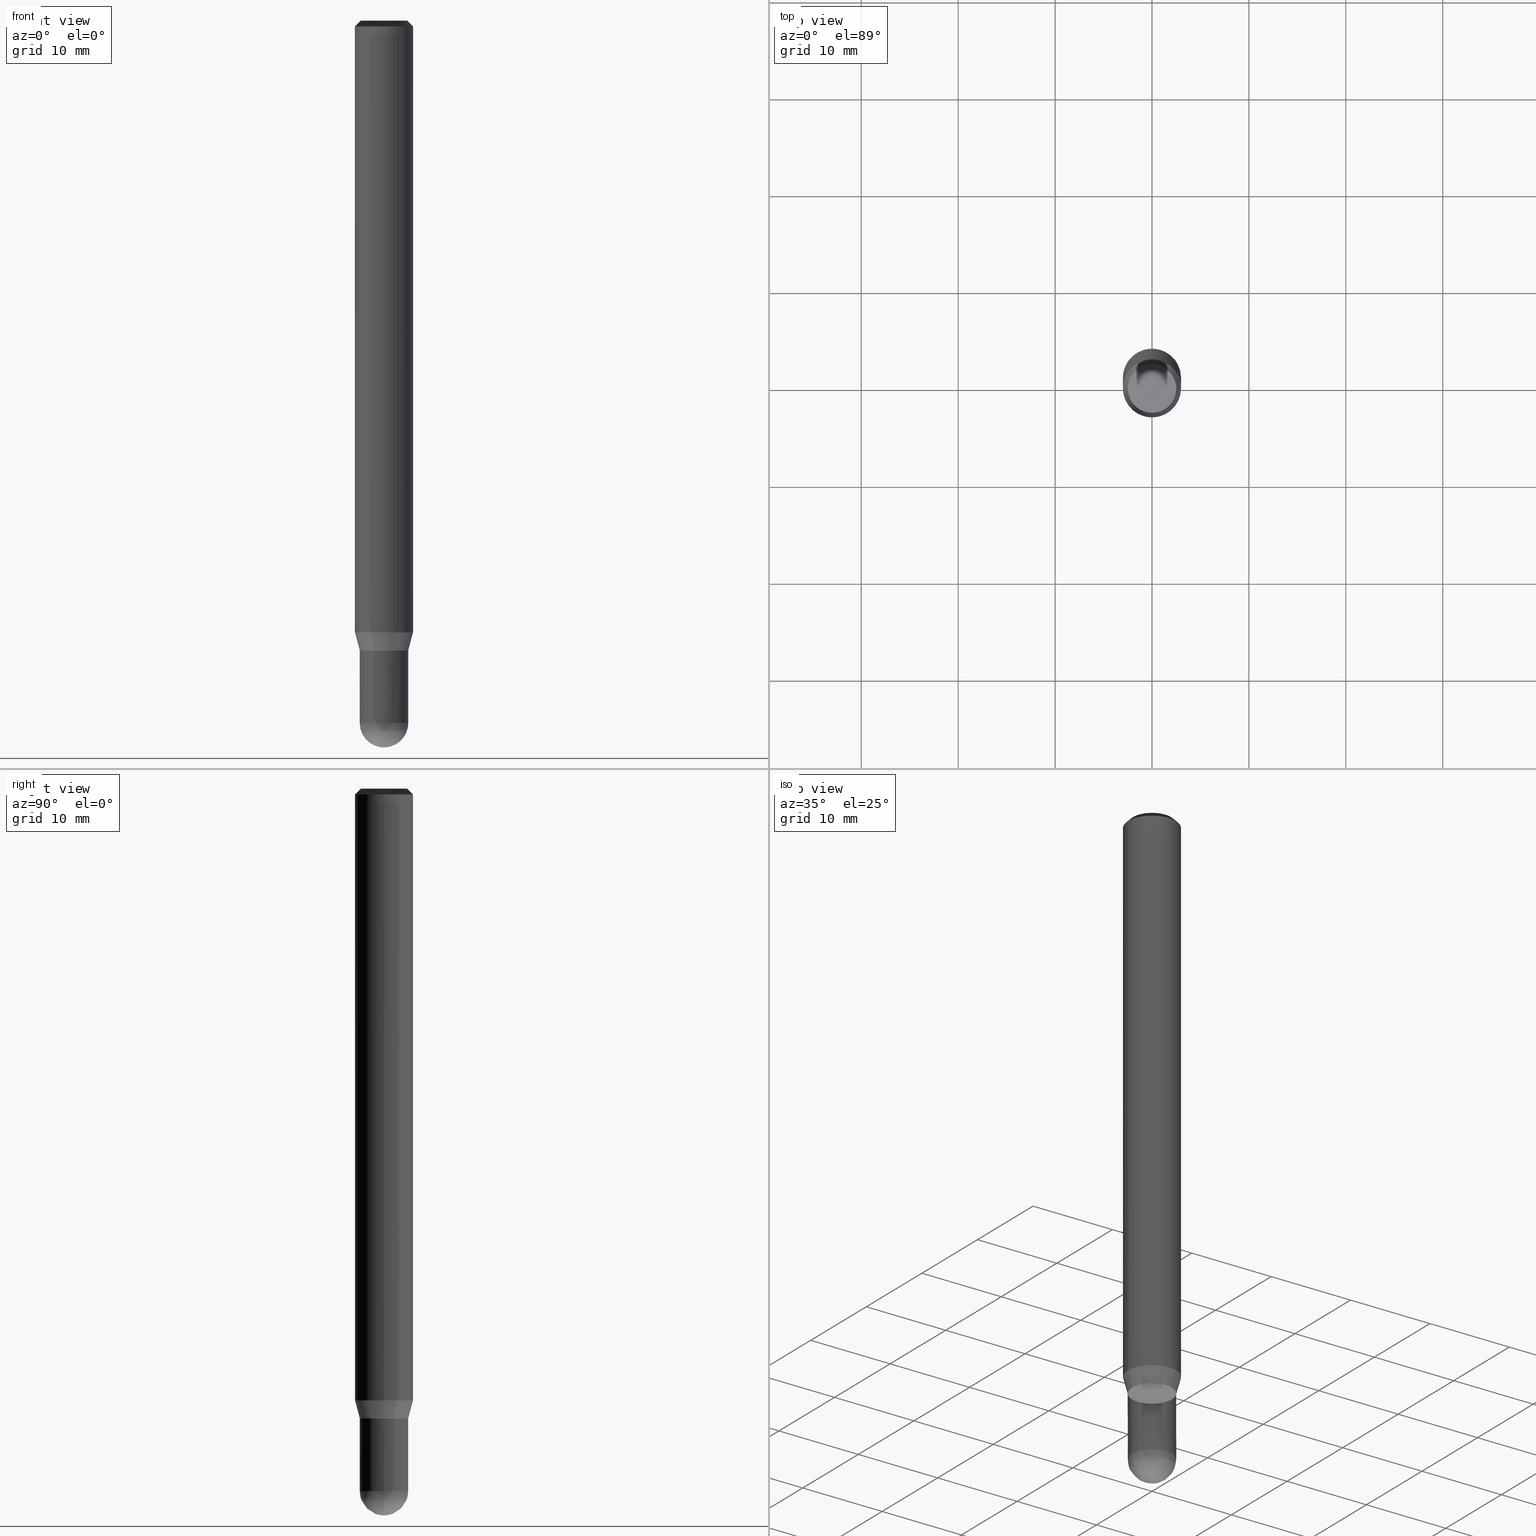
[diagram: canonical four-view strip — front | top / right | iso, engineering-drawing reading convention]
A machine part, canonical four-view strip (front | top / right | iso — engineering-drawing reading convention). The complete STEP part file that produces these views, byte-faithful:
ISO-10303-21;
HEADER;
/* Generated by ISBE GmbH (www.isbe.de) */
/* OPTION: using custom schema-name function */

FILE_DESCRIPTION(
/* description */ (''),
/* implementation_level */ '2;1');

FILE_NAME(
/*name*/ 'SHBS-2050-S06-STH',
/*time_stamp*/'2023-9-14T8:25:19',
/*author*/ ('ISBE GmbH'),
/*organization*/ ('ISBE GmbH'),
/*preprocessor_version*/ 'STEP IO v1.0',
/*originating_system*/ '',
/*authorisation*/ '');

FILE_SCHEMA (('AUTOMOTIVE_DESIGN'));
ENDSEC;

DATA;
#10=SHAPE_DEFINITION_REPRESENTATION(#11,#57);
#11=PRODUCT_DEFINITION_SHAPE('Document','',#13);
#12=PRODUCT_DEFINITION_CONTEXT('3D Mechanical Parts',#17,'design');
#13=PRODUCT_DEFINITION('A','First version',#14,#12);
#14=PRODUCT_DEFINITION_FORMATION_WITH_SPECIFIED_SOURCE('A','First version',#19,.MADE.);
#15=PRODUCT_RELATED_PRODUCT_CATEGORY('tool','tool',(#19));
#16=APPLICATION_PROTOCOL_DEFINITION('Draft International Standard', 'automotive_design',1999,#17);
#17=APPLICATION_CONTEXT('data for automotive mechanical design processes');
#18=PRODUCT_CONTEXT('3D Mechanical Parts',#17,'mechanical');
#19=PRODUCT('Document','Document','ISBE converted to STEP',(#18));
#20=(
LENGTH_UNIT()
NAMED_UNIT(*)
SI_UNIT(.MILLI.,.METRE.)
);
#21=(
NAMED_UNIT(*)
PLANE_ANGLE_UNIT()
SI_UNIT($,.RADIAN.)
);
#22=DIMENSIONAL_EXPONENTS(0.,0.,0.,0.,0.,0.,0.);
#23=PLANE_ANGLE_MEASURE_WITH_UNIT(PLANE_ANGLE_MEASURE(0.01745329252),#21);
#24=(
CONVERSION_BASED_UNIT('DEGREES',#23)
NAMED_UNIT(#22)
PLANE_ANGLE_UNIT()
);
#25=(
NAMED_UNIT(*)
SI_UNIT($,.STERADIAN.)
SOLID_ANGLE_UNIT()
);
#26=UNCERTAINTY_MEASURE_WITH_UNIT(LENGTH_MEASURE(0.001),#20, 'DISTANCE_ACCURACY_VALUE', 'Maximum model space distance between geometric entities at asserted connectivities');
#27=(
GEOMETRIC_REPRESENTATION_CONTEXT(3)
GLOBAL_UNCERTAINTY_ASSIGNED_CONTEXT((#26))
GLOBAL_UNIT_ASSIGNED_CONTEXT((#25,#24,#20))
REPRESENTATION_CONTEXT('ID1','3D')
);
#28=CARTESIAN_POINT('',(0.0,0.0,0.0));
#29=DIRECTION('',(1.0,0.0,0.0));
#30=DIRECTION('',(0.0,0.0,1.0));
#31=AXIS2_PLACEMENT_3D('',#28,#30,#29);
#32=CARTESIAN_POINT('',(0.0,0.0,0.0));
#33=DIRECTION('',(1.0,0.0,0.0));
#34=DIRECTION('',(0.0,0.0,1.0));
#35=AXIS2_PLACEMENT_3D('',#32,#34,#33);
#36=CARTESIAN_POINT('',(0.0,0.0,0.0));
#37=DIRECTION('',(1.0,0.0,0.0));
#38=DIRECTION('',(0.0,0.0,1.0));
#39=AXIS2_PLACEMENT_3D('',#36,#38,#37);
#40=CARTESIAN_POINT('',(0.0,0.0,0.0));
#41=DIRECTION('',(0.0,0.0,1.0));
#42=DIRECTION('',(1.0,0.0,0.0));
#43=AXIS2_PLACEMENT_3D('MCS',#40,#42,#41);
#44=CARTESIAN_POINT('',(0.0,0.0,63.133));
#45=DIRECTION('',(0.0,0.0,1.0));
#46=DIRECTION('',(1.0,0.0,0.0));
#47=AXIS2_PLACEMENT_3D('PCS',#44,#46,#45);
#48=CARTESIAN_POINT('',(0.0,0.0,-11.867));
#49=DIRECTION('',(0.0,0.0,1.0));
#50=DIRECTION('',(1.0,0.0,0.0));
#51=AXIS2_PLACEMENT_3D('CIP',#48,#50,#49);
#52=CARTESIAN_POINT('',(0.0,-2.5,-11.867));
#53=DIRECTION('',(0.0,0.0,1.0));
#54=DIRECTION('',(1.0,0.0,0.0));
#55=AXIS2_PLACEMENT_3D('CRP',#52,#54,#53);
#57=SHAPE_REPRESENTATION('Document',(#31,#35,#39,#43,#47,#51,#55),#27);
#58=DIRECTION('',(1.0,0.0,0.0));
#59=DIRECTION('',(0.0,0.0,1.0));
#60=CARTESIAN_POINT('',(-0.024998726725,-0.000252313601,-11.866599252332));
#61=CARTESIAN_POINT('',(-0.024214801927,-0.076382530875,-11.865715540502));
#62=CARTESIAN_POINT('',(-0.023228644848,-0.158482291947,-11.861863481876));
#63=CARTESIAN_POINT('',(-0.021973552647,-0.239049780144,-11.855447782373));
#64=CARTESIAN_POINT('',(-0.020299546149,-0.319047772958,-11.846475034558));
#65=CARTESIAN_POINT('',(-0.018067305115,-0.39859047038,-11.834954458536));
#66=CARTESIAN_POINT('',(-0.015141755148,-0.477656634566,-11.820897892478));
#67=CARTESIAN_POINT('',(-0.011391824297,-0.556185683153,-11.804319780455));
#68=CARTESIAN_POINT('',(-0.006690918713,-0.634101160085,-11.785237157598));
#69=CARTESIAN_POINT('',(-0.000917546966,-0.711318374795,-11.763669632592));
#70=CARTESIAN_POINT('',(0.006044020743,-0.787747358914,-11.739639367527));
#71=CARTESIAN_POINT('',(0.014303091102,-0.863294157099,-11.713171055124));
#72=CARTESIAN_POINT('',(0.023961896654,-0.937861454829,-11.684291893365));
#73=CARTESIAN_POINT('',(0.03511496199,-1.011348929588,-11.65303155754));
#74=CARTESIAN_POINT('',(0.047848492012,-1.083653492129,-11.619422169756));
#75=CARTESIAN_POINT('',(0.062239786453,-1.15466949648,-11.583498265933));
#76=CARTESIAN_POINT('',(0.078356684679,-1.224288958537,-11.545296760308));
#77=CARTESIAN_POINT('',(0.096257044815,-1.292401804518,-11.504856907513));
#78=CARTESIAN_POINT('',(0.115988261284,-1.358896160855,-11.46222026223));
#79=CARTESIAN_POINT('',(0.13758682494,-1.423658691729,-11.417430636492));
#80=CARTESIAN_POINT('',(0.161077929994,-1.486574987092,-11.37053405467));
#81=CARTESIAN_POINT('',(0.186475131943,-1.547530001827,-11.32157870617));
#82=CARTESIAN_POINT('',(0.21378006066,-1.606408545073,-11.270614895923));
#83=CARTESIAN_POINT('',(0.242982192653,-1.663095817472,-11.217694992688));
#84=CARTESIAN_POINT('',(0.274058686359,-1.717477993023,-11.162873375244));
#85=CARTESIAN_POINT('',(0.306974284042,-1.769442841362,-11.106206376509));
#86=CARTESIAN_POINT('',(0.341681283548,-1.818880385411,-11.047752225653));
#87=CARTESIAN_POINT('',(0.378119582776,-1.865683588688,-10.987570988269));
#88=CARTESIAN_POINT('',(0.416216799237,-1.909749065884,-10.925724504647));
#89=CARTESIAN_POINT('',(0.455888466522,-1.950977809795,-10.862276326228));
#90=CARTESIAN_POINT('',(0.497038308927,-1.989275927197,-10.797291650305));
#91=CARTESIAN_POINT('',(0.539558594768,-2.024555375896,-10.730837253026));
#92=CARTESIAN_POINT('',(0.583330568255,-2.056734694885,-10.662981420776));
#93=CARTESIAN_POINT('',(0.628224958997,-2.085739719347,-10.59379388001));
#94=CARTESIAN_POINT('',(0.674102567459,-2.111504272178,-10.523345725602));
#95=CARTESIAN_POINT('',(0.720814923842,-2.133970823693,-10.451709347794));
#96=CARTESIAN_POINT('',(0.768205017087,-2.153091111353,-10.378958357806));
#97=CARTESIAN_POINT('',(0.816108089865,-2.168826711545,-10.305167512198));
#98=CARTESIAN_POINT('',(0.864352494631,-2.181149555837,-10.230412636053));
#99=CARTESIAN_POINT('',(0.91276060506,-2.190042384564,-10.154770545059));
#100=CARTESIAN_POINT('',(0.961149776469,-2.195499131173,-10.078318966578));
#101=CARTESIAN_POINT('',(1.009333348177,-2.197525231401,-10.001136459774));
#102=CARTESIAN_POINT('',(1.057121680145,-2.196137852131,-9.923302334891));
#103=CARTESIAN_POINT('',(1.104323215766,-2.191366035565,-9.844896571753));
#104=CARTESIAN_POINT('',(1.150745562231,-2.183250755276,-9.765999737583));
#105=CARTESIAN_POINT('',(1.196196579605,-2.171844881647,-9.686692904211));
#106=CARTESIAN_POINT('',(1.240485469523,-2.157213055194,-9.607057564769));
#107=CARTESIAN_POINT('',(1.283423854338,-2.139431467309,-9.527175549952));
#108=CARTESIAN_POINT('',(1.324826837576,-2.118587549001,-9.447128943929));
#109=CARTESIAN_POINT('',(1.364514036683,-2.094779569237,-9.367));
#110=CARTESIAN_POINT('',(1.402878779156,-2.069282757622,-9.287212765957));
#111=CARTESIAN_POINT('',(1.440767229499,-2.043083402703,-9.207425531915));
#112=CARTESIAN_POINT('',(1.478166524184,-2.016190399437,-9.127638297872));
#113=CARTESIAN_POINT('',(1.515063965755,-1.988612878282,-9.04785106383));
#114=CARTESIAN_POINT('',(1.551447027143,-1.960360202098,-8.968063829787));
#115=CARTESIAN_POINT('',(1.587303355915,-1.931441962965,-8.888276595745));
#116=CARTESIAN_POINT('',(1.622620778469,-1.90186797893,-8.808489361702));
#117=CARTESIAN_POINT('',(1.657387304169,-1.871648290673,-8.72870212766));
#118=CARTESIAN_POINT('',(1.691591129412,-1.840793158097,-8.648914893617));
#119=CARTESIAN_POINT('',(1.725220641639,-1.809313056843,-8.569127659574));
#120=CARTESIAN_POINT('',(1.758264423276,-1.777218674739,-8.489340425532));
#121=CARTESIAN_POINT('',(1.790711255612,-1.744520908165,-8.409553191489));
#122=CARTESIAN_POINT('',(1.822550122605,-1.711230858357,-8.329765957447));
#123=CARTESIAN_POINT('',(1.853770214623,-1.677359827639,-8.249978723404));
#124=CARTESIAN_POINT('',(1.884360932117,-1.642919315582,-8.170191489362));
#125=CARTESIAN_POINT('',(1.914311889216,-1.607921015102,-8.090404255319));
#126=CARTESIAN_POINT('',(1.943612917253,-1.572376808493,-8.010617021277));
#127=CARTESIAN_POINT('',(1.972254068222,-1.536298763386,-7.930829787234));
#128=CARTESIAN_POINT('',(2.00022561815,-1.499699128658,-7.851042553191));
#129=CARTESIAN_POINT('',(2.0275180704,-1.462590330271,-7.771255319149));
#130=CARTESIAN_POINT('',(2.054122158898,-1.424984967053,-7.691468085106));
#131=CARTESIAN_POINT('',(2.080028851274,-1.38689580642,-7.611680851064));
#132=CARTESIAN_POINT('',(2.105229351935,-1.348335780046,-7.531893617021));
#133=CARTESIAN_POINT('',(2.129715105044,-1.309317979464,-7.452106382979));
#134=CARTESIAN_POINT('',(2.15347779743,-1.269855651629,-7.372319148936));
#135=CARTESIAN_POINT('',(2.176509361409,-1.229962194418,-7.292531914894));
#136=CARTESIAN_POINT('',(2.198801977522,-1.18965115208,-7.212744680851));
#137=CARTESIAN_POINT('',(2.220348077191,-1.148936210638,-7.132957446809));
#138=CARTESIAN_POINT('',(2.241140345287,-1.107831193244,-7.053170212766));
#139=CARTESIAN_POINT('',(2.261171722618,-1.066350055485,-6.973382978723));
#140=CARTESIAN_POINT('',(2.280435408319,-1.024506880644,-6.893595744681));
#141=CARTESIAN_POINT('',(2.298924862165,-0.982315874919,-6.813808510638));
#142=CARTESIAN_POINT('',(2.316633806793,-0.939791362603,-6.734021276596));
#143=CARTESIAN_POINT('',(2.333556229829,-0.896947781215,-6.654234042553));
#144=CARTESIAN_POINT('',(2.349686385932,-0.853799676603,-6.574446808511));
#145=CARTESIAN_POINT('',(2.365018798744,-0.810361698002,-6.494659574468));
#146=CARTESIAN_POINT('',(2.379548262749,-0.766648593064,-6.414872340426));
#147=CARTESIAN_POINT('',(2.393269845042,-0.72267520285,-6.335085106383));
#148=CARTESIAN_POINT('',(2.406178887,-0.678456456788,-6.25529787234));
#149=CARTESIAN_POINT('',(2.418271005867,-0.634007367609,-6.175510638298));
#150=CARTESIAN_POINT('',(2.429542096243,-0.589343026247,-6.095723404255));
#151=CARTESIAN_POINT('',(2.439988331472,-0.544478596716,-6.015936170213));
#152=CARTESIAN_POINT('',(2.449606164948,-0.499429310964,-5.93614893617));
#153=CARTESIAN_POINT('',(2.458392331315,-0.454210463697,-5.856361702128));
#154=CARTESIAN_POINT('',(2.466343847577,-0.408837407191,-5.776574468085));
#155=CARTESIAN_POINT('',(2.473458014111,-0.363325546077,-5.696787234043));
#156=CARTESIAN_POINT('',(2.479732415581,-0.317690332111,-5.617));
#157=CARTESIAN_POINT('',(2.485164921763,-0.271947258928,-5.537212765957));
#158=CARTESIAN_POINT('',(2.489753688263,-0.226111856786,-5.457425531915));
#159=CARTESIAN_POINT('',(2.493497157147,-0.180199687285,-5.377638297872));
#160=CARTESIAN_POINT('',(2.496394057468,-0.134226338091,-5.29785106383));
#161=CARTESIAN_POINT('',(2.498443405697,-0.088207417641,-5.218063829787));
#162=CARTESIAN_POINT('',(2.49964450606,-0.042158549843,-5.138276595745));
#163=CARTESIAN_POINT('',(2.499996950769,0.003904631227,-5.058489361702));
#164=CARTESIAN_POINT('',(2.499500620167,0.049966486634,-4.97870212766));
#165=CARTESIAN_POINT('',(2.498155682762,0.096011377891,-4.898914893617));
#166=CARTESIAN_POINT('',(2.495962595175,0.142023672274,-4.819127659574));
#167=CARTESIAN_POINT('',(2.492922101983,0.187987748124,-4.739340425532));
#168=CARTESIAN_POINT('',(2.489035235465,0.233888000152,-4.659553191489));
#169=CARTESIAN_POINT('',(2.484303315253,0.279708844739,-4.579765957447));
#170=CARTESIAN_POINT('',(2.478727947883,0.325434725225,-4.499978723404));
#171=CARTESIAN_POINT('',(2.472311026253,0.371050117193,-4.420191489362));
#172=CARTESIAN_POINT('',(2.465054728974,0.416539533735,-4.340404255319));
#173=CARTESIAN_POINT('',(2.456961519635,0.461887530716,-4.260617021277));
#174=CARTESIAN_POINT('',(2.448034145968,0.507078712012,-4.180829787234));
#175=CARTESIAN_POINT('',(2.438275638908,0.552097734742,-4.101042553191));
#176=CARTESIAN_POINT('',(2.427689311573,0.596929314472,-4.021255319149));
#177=CARTESIAN_POINT('',(2.416278758131,0.641558230409,-3.941468085106));
#178=CARTESIAN_POINT('',(2.404047852586,0.685969330566,-3.861680851064));
#179=CARTESIAN_POINT('',(2.391000747459,0.730147536905,-3.781893617021));
#180=CARTESIAN_POINT('',(2.377141872381,0.774077850461,-3.702106382979));
#181=CARTESIAN_POINT('',(2.362475932584,0.817745356429,-3.622319148936));
#182=CARTESIAN_POINT('',(2.347007907311,0.86113522923,-3.542531914894));
#183=CARTESIAN_POINT('',(2.330743048118,0.904232737546,-3.462744680851));
#184=CARTESIAN_POINT('',(2.313686877097,0.947023249317,-3.382957446809));
#185=CARTESIAN_POINT('',(2.295845184998,0.989492236715,-3.303170212766));
#186=CARTESIAN_POINT('',(2.277224029264,1.031625281071,-3.223382978723));
#187=CARTESIAN_POINT('',(2.257829731972,1.073408077771,-3.143595744681));
#188=CARTESIAN_POINT('',(2.237668877691,1.114826441117,-3.063808510638));
#189=CARTESIAN_POINT('',(2.216748311244,1.155866309137,-2.984021276596));
#190=CARTESIAN_POINT('',(2.195075135383,1.196513748363,-2.904234042553));
#191=CARTESIAN_POINT('',(2.172656708381,1.236754958562,-2.824446808511));
#192=CARTESIAN_POINT('',(2.149500641528,1.276576277419,-2.744659574468));
#193=CARTESIAN_POINT('',(2.125614796555,1.315964185176,-2.664872340426));
#194=CARTESIAN_POINT('',(2.101007282957,1.354905309224,-2.585085106383));
#195=CARTESIAN_POINT('',(2.075686455244,1.39338642864,-2.50529787234));
#196=CARTESIAN_POINT('',(2.049660910104,1.431394478678,-2.425510638298));
#197=CARTESIAN_POINT('',(2.022939483485,1.468916555206,-2.345723404255));
#198=CARTESIAN_POINT('',(1.995531247591,1.505939919083,-2.265936170213));
#199=CARTESIAN_POINT('',(1.967445507808,1.542452000487,-2.18614893617));
#200=CARTESIAN_POINT('',(1.938691799541,1.57844040318,-2.106361702128));
#201=CARTESIAN_POINT('',(1.909279884976,1.613892908722,-2.026574468085));
#202=CARTESIAN_POINT('',(1.879219749769,1.648797480613,-1.946787234043));
#203=CARTESIAN_POINT('',(1.848521599652,1.683142268383,-1.867));
#204=CARTESIAN_POINT('',(0.024998726725,0.000252313601,-11.866599252332));
#205=CARTESIAN_POINT('',(0.024214801927,0.076382530875,-11.865715540502));
#206=CARTESIAN_POINT('',(0.023228644848,0.158482291947,-11.861863481876));
#207=CARTESIAN_POINT('',(0.021973552647,0.239049780144,-11.855447782373));
#208=CARTESIAN_POINT('',(0.020299546149,0.319047772958,-11.846475034558));
#209=CARTESIAN_POINT('',(0.018067305115,0.39859047038,-11.834954458536));
#210=CARTESIAN_POINT('',(0.015141755148,0.477656634566,-11.820897892478));
#211=CARTESIAN_POINT('',(0.011391824297,0.556185683153,-11.804319780455));
#212=CARTESIAN_POINT('',(0.006690918713,0.634101160085,-11.785237157598));
#213=CARTESIAN_POINT('',(0.000917546966,0.711318374795,-11.763669632592));
#214=CARTESIAN_POINT('',(-0.006044020743,0.787747358914,-11.739639367527));
#215=CARTESIAN_POINT('',(-0.014303091102,0.863294157099,-11.713171055124));
#216=CARTESIAN_POINT('',(-0.023961896654,0.937861454829,-11.684291893365));
#217=CARTESIAN_POINT('',(-0.03511496199,1.011348929588,-11.65303155754));
#218=CARTESIAN_POINT('',(-0.047848492012,1.083653492129,-11.619422169756));
#219=CARTESIAN_POINT('',(-0.062239786453,1.15466949648,-11.583498265933));
#220=CARTESIAN_POINT('',(-0.078356684679,1.224288958537,-11.545296760308));
#221=CARTESIAN_POINT('',(-0.096257044815,1.292401804518,-11.504856907513));
#222=CARTESIAN_POINT('',(-0.115988261284,1.358896160855,-11.46222026223));
#223=CARTESIAN_POINT('',(-0.13758682494,1.423658691729,-11.417430636492));
#224=CARTESIAN_POINT('',(-0.161077929994,1.486574987092,-11.37053405467));
#225=CARTESIAN_POINT('',(-0.186475131943,1.547530001827,-11.32157870617));
#226=CARTESIAN_POINT('',(-0.21378006066,1.606408545073,-11.270614895923));
#227=CARTESIAN_POINT('',(-0.242982192653,1.663095817472,-11.217694992688));
#228=CARTESIAN_POINT('',(-0.274058686359,1.717477993023,-11.162873375244));
#229=CARTESIAN_POINT('',(-0.306974284042,1.769442841362,-11.106206376509));
#230=CARTESIAN_POINT('',(-0.341681283548,1.818880385411,-11.047752225653));
#231=CARTESIAN_POINT('',(-0.378119582776,1.865683588688,-10.987570988269));
#232=CARTESIAN_POINT('',(-0.416216799237,1.909749065884,-10.925724504647));
#233=CARTESIAN_POINT('',(-0.455888466522,1.950977809795,-10.862276326228));
#234=CARTESIAN_POINT('',(-0.497038308927,1.989275927197,-10.797291650305));
#235=CARTESIAN_POINT('',(-0.539558594768,2.024555375896,-10.730837253026));
#236=CARTESIAN_POINT('',(-0.583330568255,2.056734694885,-10.662981420776));
#237=CARTESIAN_POINT('',(-0.628224958997,2.085739719347,-10.59379388001));
#238=CARTESIAN_POINT('',(-0.674102567459,2.111504272178,-10.523345725602));
#239=CARTESIAN_POINT('',(-0.720814923842,2.133970823693,-10.451709347794));
#240=CARTESIAN_POINT('',(-0.768205017087,2.153091111353,-10.378958357806));
#241=CARTESIAN_POINT('',(-0.816108089865,2.168826711545,-10.305167512198));
#242=CARTESIAN_POINT('',(-0.864352494631,2.181149555837,-10.230412636053));
#243=CARTESIAN_POINT('',(-0.91276060506,2.190042384564,-10.154770545059));
#244=CARTESIAN_POINT('',(-0.961149776469,2.195499131173,-10.078318966578));
#245=CARTESIAN_POINT('',(-1.009333348177,2.197525231401,-10.001136459774));
#246=CARTESIAN_POINT('',(-1.057121680145,2.196137852131,-9.923302334891));
#247=CARTESIAN_POINT('',(-1.104323215766,2.191366035565,-9.844896571753));
#248=CARTESIAN_POINT('',(-1.150745562231,2.183250755276,-9.765999737583));
#249=CARTESIAN_POINT('',(-1.196196579605,2.171844881647,-9.686692904211));
#250=CARTESIAN_POINT('',(-1.240485469523,2.157213055194,-9.607057564769));
#251=CARTESIAN_POINT('',(-1.283423854338,2.139431467309,-9.527175549952));
#252=CARTESIAN_POINT('',(-1.324826837576,2.118587549001,-9.447128943929));
#253=CARTESIAN_POINT('',(-1.364514036683,2.094779569237,-9.367));
#254=CARTESIAN_POINT('',(-1.402878779156,2.069282757622,-9.287212765957));
#255=CARTESIAN_POINT('',(-1.440767229499,2.043083402703,-9.207425531915));
#256=CARTESIAN_POINT('',(-1.478166524184,2.016190399437,-9.127638297872));
#257=CARTESIAN_POINT('',(-1.515063965755,1.988612878282,-9.04785106383));
#258=CARTESIAN_POINT('',(-1.551447027143,1.960360202098,-8.968063829787));
#259=CARTESIAN_POINT('',(-1.587303355915,1.931441962965,-8.888276595745));
#260=CARTESIAN_POINT('',(-1.622620778469,1.90186797893,-8.808489361702));
#261=CARTESIAN_POINT('',(-1.657387304169,1.871648290673,-8.72870212766));
#262=CARTESIAN_POINT('',(-1.691591129412,1.840793158097,-8.648914893617));
#263=CARTESIAN_POINT('',(-1.725220641639,1.809313056843,-8.569127659574));
#264=CARTESIAN_POINT('',(-1.758264423276,1.777218674739,-8.489340425532));
#265=CARTESIAN_POINT('',(-1.790711255612,1.744520908165,-8.409553191489));
#266=CARTESIAN_POINT('',(-1.822550122605,1.711230858357,-8.329765957447));
#267=CARTESIAN_POINT('',(-1.853770214623,1.677359827639,-8.249978723404));
#268=CARTESIAN_POINT('',(-1.884360932117,1.642919315582,-8.170191489362));
#269=CARTESIAN_POINT('',(-1.914311889216,1.607921015102,-8.090404255319));
#270=CARTESIAN_POINT('',(-1.943612917253,1.572376808493,-8.010617021277));
#271=CARTESIAN_POINT('',(-1.972254068222,1.536298763386,-7.930829787234));
#272=CARTESIAN_POINT('',(-2.00022561815,1.499699128658,-7.851042553191));
#273=CARTESIAN_POINT('',(-2.0275180704,1.462590330271,-7.771255319149));
#274=CARTESIAN_POINT('',(-2.054122158898,1.424984967053,-7.691468085106));
#275=CARTESIAN_POINT('',(-2.080028851274,1.38689580642,-7.611680851064));
#276=CARTESIAN_POINT('',(-2.105229351935,1.348335780046,-7.531893617021));
#277=CARTESIAN_POINT('',(-2.129715105044,1.309317979464,-7.452106382979));
#278=CARTESIAN_POINT('',(-2.15347779743,1.269855651629,-7.372319148936));
#279=CARTESIAN_POINT('',(-2.176509361409,1.229962194418,-7.292531914894));
#280=CARTESIAN_POINT('',(-2.198801977522,1.18965115208,-7.212744680851));
#281=CARTESIAN_POINT('',(-2.220348077191,1.148936210638,-7.132957446809));
#282=CARTESIAN_POINT('',(-2.241140345287,1.107831193244,-7.053170212766));
#283=CARTESIAN_POINT('',(-2.261171722618,1.066350055485,-6.973382978723));
#284=CARTESIAN_POINT('',(-2.280435408319,1.024506880644,-6.893595744681));
#285=CARTESIAN_POINT('',(-2.298924862165,0.982315874919,-6.813808510638));
#286=CARTESIAN_POINT('',(-2.316633806793,0.939791362603,-6.734021276596));
#287=CARTESIAN_POINT('',(-2.333556229829,0.896947781215,-6.654234042553));
#288=CARTESIAN_POINT('',(-2.349686385932,0.853799676603,-6.574446808511));
#289=CARTESIAN_POINT('',(-2.365018798744,0.810361698002,-6.494659574468));
#290=CARTESIAN_POINT('',(-2.379548262749,0.766648593064,-6.414872340426));
#291=CARTESIAN_POINT('',(-2.393269845042,0.72267520285,-6.335085106383));
#292=CARTESIAN_POINT('',(-2.406178887,0.678456456788,-6.25529787234));
#293=CARTESIAN_POINT('',(-2.418271005867,0.634007367609,-6.175510638298));
#294=CARTESIAN_POINT('',(-2.429542096243,0.589343026247,-6.095723404255));
#295=CARTESIAN_POINT('',(-2.439988331472,0.544478596716,-6.015936170213));
#296=CARTESIAN_POINT('',(-2.449606164948,0.499429310964,-5.93614893617));
#297=CARTESIAN_POINT('',(-2.458392331315,0.454210463697,-5.856361702128));
#298=CARTESIAN_POINT('',(-2.466343847577,0.408837407191,-5.776574468085));
#299=CARTESIAN_POINT('',(-2.473458014111,0.363325546077,-5.696787234043));
#300=CARTESIAN_POINT('',(-2.479732415581,0.317690332111,-5.617));
#301=CARTESIAN_POINT('',(-2.485164921763,0.271947258928,-5.537212765957));
#302=CARTESIAN_POINT('',(-2.489753688263,0.226111856786,-5.457425531915));
#303=CARTESIAN_POINT('',(-2.493497157147,0.180199687285,-5.377638297872));
#304=CARTESIAN_POINT('',(-2.496394057468,0.134226338091,-5.29785106383));
#305=CARTESIAN_POINT('',(-2.498443405697,0.088207417641,-5.218063829787));
#306=CARTESIAN_POINT('',(-2.49964450606,0.042158549843,-5.138276595745));
#307=CARTESIAN_POINT('',(-2.499996950769,-0.003904631227,-5.058489361702));
#308=CARTESIAN_POINT('',(-2.499500620167,-0.049966486634,-4.97870212766));
#309=CARTESIAN_POINT('',(-2.498155682762,-0.096011377891,-4.898914893617));
#310=CARTESIAN_POINT('',(-2.495962595175,-0.142023672274,-4.819127659574));
#311=CARTESIAN_POINT('',(-2.492922101983,-0.187987748124,-4.739340425532));
#312=CARTESIAN_POINT('',(-2.489035235465,-0.233888000152,-4.659553191489));
#313=CARTESIAN_POINT('',(-2.484303315253,-0.279708844739,-4.579765957447));
#314=CARTESIAN_POINT('',(-2.478727947883,-0.325434725225,-4.499978723404));
#315=CARTESIAN_POINT('',(-2.472311026253,-0.371050117193,-4.420191489362));
#316=CARTESIAN_POINT('',(-2.465054728974,-0.416539533735,-4.340404255319));
#317=CARTESIAN_POINT('',(-2.456961519635,-0.461887530716,-4.260617021277));
#318=CARTESIAN_POINT('',(-2.448034145968,-0.507078712012,-4.180829787234));
#319=CARTESIAN_POINT('',(-2.438275638908,-0.552097734742,-4.101042553191));
#320=CARTESIAN_POINT('',(-2.427689311573,-0.596929314472,-4.021255319149));
#321=CARTESIAN_POINT('',(-2.416278758131,-0.641558230409,-3.941468085106));
#322=CARTESIAN_POINT('',(-2.404047852586,-0.685969330566,-3.861680851064));
#323=CARTESIAN_POINT('',(-2.391000747459,-0.730147536905,-3.781893617021));
#324=CARTESIAN_POINT('',(-2.377141872381,-0.774077850461,-3.702106382979));
#325=CARTESIAN_POINT('',(-2.362475932584,-0.817745356429,-3.622319148936));
#326=CARTESIAN_POINT('',(-2.347007907311,-0.86113522923,-3.542531914894));
#327=CARTESIAN_POINT('',(-2.330743048118,-0.904232737546,-3.462744680851));
#328=CARTESIAN_POINT('',(-2.313686877097,-0.947023249317,-3.382957446809));
#329=CARTESIAN_POINT('',(-2.295845184998,-0.989492236715,-3.303170212766));
#330=CARTESIAN_POINT('',(-2.277224029264,-1.031625281071,-3.223382978723));
#331=CARTESIAN_POINT('',(-2.257829731972,-1.073408077771,-3.143595744681));
#332=CARTESIAN_POINT('',(-2.237668877691,-1.114826441117,-3.063808510638));
#333=CARTESIAN_POINT('',(-2.216748311244,-1.155866309137,-2.984021276596));
#334=CARTESIAN_POINT('',(-2.195075135383,-1.196513748363,-2.904234042553));
#335=CARTESIAN_POINT('',(-2.172656708381,-1.236754958562,-2.824446808511));
#336=CARTESIAN_POINT('',(-2.149500641528,-1.276576277419,-2.744659574468));
#337=CARTESIAN_POINT('',(-2.125614796555,-1.315964185176,-2.664872340426));
#338=CARTESIAN_POINT('',(-2.101007282957,-1.354905309224,-2.585085106383));
#339=CARTESIAN_POINT('',(-2.075686455244,-1.39338642864,-2.50529787234));
#340=CARTESIAN_POINT('',(-2.049660910104,-1.431394478678,-2.425510638298));
#341=CARTESIAN_POINT('',(-2.022939483485,-1.468916555206,-2.345723404255));
#342=CARTESIAN_POINT('',(-1.995531247591,-1.505939919083,-2.265936170213));
#343=CARTESIAN_POINT('',(-1.967445507808,-1.542452000487,-2.18614893617));
#344=CARTESIAN_POINT('',(-1.938691799541,-1.57844040318,-2.106361702128));
#345=CARTESIAN_POINT('',(-1.909279884976,-1.613892908722,-2.026574468085));
#346=CARTESIAN_POINT('',(-1.879219749769,-1.648797480613,-1.946787234043));
#347=CARTESIAN_POINT('',(-1.848521599652,-1.683142268383,-1.867));
#348=CARTESIAN_POINT('',(0.0,0.0,-11.867));
#349=CARTESIAN_POINT('',(2.5,0.0,-11.867));
#350=CARTESIAN_POINT('',(2.5,2.5,-11.867));
#351=CARTESIAN_POINT('',(0.0,2.5,-11.867));
#352=CARTESIAN_POINT('',(-2.5,2.5,-11.867));
#353=CARTESIAN_POINT('',(-2.5,0.0,-11.867));
#354=CARTESIAN_POINT('',(2.5,0.0,-9.367));
#355=CARTESIAN_POINT('',(2.5,2.5,-9.367));
#356=CARTESIAN_POINT('',(0.0,2.5,-9.367));
#357=CARTESIAN_POINT('',(-2.5,2.5,-9.367));
#358=CARTESIAN_POINT('',(-2.5,0.0,-9.367));
#359=CARTESIAN_POINT('',(2.5,0.0,-1.867));
#360=CARTESIAN_POINT('',(2.5,2.5,-1.867));
#361=CARTESIAN_POINT('',(0.0,2.5,-1.867));
#362=CARTESIAN_POINT('',(-2.5,2.5,-1.867));
#363=CARTESIAN_POINT('',(-2.5,0.0,-1.867));
#364=CARTESIAN_POINT('',(0.0,0.0,-1.867));
#365=CARTESIAN_POINT('',(-2.5,-2.5,-11.867));
#366=CARTESIAN_POINT('',(0.0,-2.5,-11.867));
#367=CARTESIAN_POINT('',(2.5,-2.5,-11.867));
#368=CARTESIAN_POINT('',(-2.5,-2.5,-9.367));
#369=CARTESIAN_POINT('',(0.0,-2.5,-9.367));
#370=CARTESIAN_POINT('',(2.5,-2.5,-9.367));
#371=CARTESIAN_POINT('',(-2.5,-2.5,-1.867));
#372=CARTESIAN_POINT('',(0.0,-2.5,-1.867));
#373=CARTESIAN_POINT('',(2.5,-2.5,-1.867));
#374=CARTESIAN_POINT('',(2.5,0.0,-1.866025403784));
#375=CARTESIAN_POINT('',(2.5,2.5,-1.866025403784));
#376=CARTESIAN_POINT('',(0.0,2.5,-1.866025403784));
#377=CARTESIAN_POINT('',(-2.5,2.5,-1.866025403784));
#378=CARTESIAN_POINT('',(-2.5,0.0,-1.866025403784));
#379=CARTESIAN_POINT('',(3.0,0.0,-0.0));
#380=CARTESIAN_POINT('',(3.0,3.0,-0.0));
#381=CARTESIAN_POINT('',(0.0,3.0,-0.0));
#382=CARTESIAN_POINT('',(-3.0,3.0,-0.0));
#383=CARTESIAN_POINT('',(-3.0,0.0,-0.0));
#384=CARTESIAN_POINT('',(3.0,0.0,62.533));
#385=CARTESIAN_POINT('',(3.0,3.0,62.533));
#386=CARTESIAN_POINT('',(0.0,3.0,62.533));
#387=CARTESIAN_POINT('',(-3.0,3.0,62.533));
#388=CARTESIAN_POINT('',(-3.0,0.0,62.533));
#389=CARTESIAN_POINT('',(2.4,0.0,63.133));
#390=CARTESIAN_POINT('',(2.4,2.4,63.133));
#391=CARTESIAN_POINT('',(0.0,2.4,63.133));
#392=CARTESIAN_POINT('',(-2.4,2.4,63.133));
#393=CARTESIAN_POINT('',(-2.4,0.0,63.133));
#394=CARTESIAN_POINT('',(0.0,0.0,63.133));
#395=CARTESIAN_POINT('',(-2.5,-2.5,-1.866025403784));
#396=CARTESIAN_POINT('',(0.0,-2.5,-1.866025403784));
#397=CARTESIAN_POINT('',(2.5,-2.5,-1.866025403784));
#398=CARTESIAN_POINT('',(-3.0,-3.0,-0.0));
#399=CARTESIAN_POINT('',(0.0,-3.0,-0.0));
#400=CARTESIAN_POINT('',(3.0,-3.0,-0.0));
#401=CARTESIAN_POINT('',(-3.0,-3.0,62.533));
#402=CARTESIAN_POINT('',(0.0,-3.0,62.533));
#403=CARTESIAN_POINT('',(3.0,-3.0,62.533));
#404=CARTESIAN_POINT('',(-2.4,-2.4,63.133));
#405=CARTESIAN_POINT('',(0.0,-2.4,63.133));
#406=CARTESIAN_POINT('',(2.4,-2.4,63.133));
#407=(
BOUNDED_CURVE()
B_SPLINE_CURVE(1,(#60,#61,#62,#63,#64,#65,#66,#67,#68,#69,#70,#71,#72,#73,#74,#75,#76,#77,#78,#79,#80,#81,#82,#83,#84,#85,#86,#87,#88,#89,#90,#91,#92,#93,#94,#95,#96,#97,#98,#99,#100,#101,#102,#103,#104,#105,#106,#107,#108,#109,#110,#111,#112,#113,#114,#115,#116,#117,#118,#119,#120,#121,#122,#123,#124,#125,#126,#127,#128,#129,#130,#131,#132,#133,#134,#135,#136,#137,#138,#139,#140,#141,#142,#143,#144,#145,#146,#147,#148,#149,#150,#151,#152,#153,#154,#155,#156,#157,#158,#159,#160,#161,#162,#163,#164,#165,#166,#167,#168,#169,#170,#171,#172,#173,#174,#175,#176,#177,#178,#179,#180,#181,#182,#183,#184,#185,#186,#187,#188,#189,#190,#191,#192,#193,#194,#195,#196,#197,#198,#199,#200,#201,#202,#203),.UNSPECIFIED.,.F.,.F.)
B_SPLINE_CURVE_WITH_KNOTS((2,1,1,1,1,1,1,1,1,1,1,1,1,1,1,1,1,1,1,1,1,1,1,1,1,1,1,1,1,1,1,1,1,1,1,1,1,1,1,1,1,1,1,1,1,1,1,1,1,1,1,1,1,1,1,1,1,1,1,1,1,1,1,1,1,1,1,1,1,1,1,1,1,1,1,1,1,1,1,1,1,1,1,1,1,1,1,1,1,1,1,1,1,1,1,1,1,1,1,1,1,1,1,1,1,1,1,1,1,1,1,1,1,1,1,1,1,1,1,1,1,1,1,1,1,1,1,1,1,1,1,1,1,1,1,1,1,1,1,1,1,1,1,2),
(0.0,0.005936389425,0.012344997231,0.018647279287,0.024924982175,0.03119384566,0.037459244869,0.043723723762,0.049988862139,0.056255902769,0.062526007052,0.068800373706,0.075080298065,0.081367201643,0.087662644595,0.093968326998,0.100286081979,0.10661786244,0.112965722506,0.11933179459,0.125718262827,0.132127333608,0.138561203952,0.145022028443,0.151511885475,0.158032743533,0.164586428204,0.171174590602,0.177798677779,0.18445990569,0.19115923515,0.19789735116,0.204674645893,0.211491205524,0.218346801039,0.225240883046,0.232172580569,0.23914070373,0.246143750184,0.253179915119,0.26024710461,0.26734295209,0.274464837665,0.281609910023,0.288775110628,0.295957199949,0.303152785397,0.310358350716,0.317570286525,0.324784921729,0.331968060859,0.33915119999,0.346334339121,0.353517478251,0.360700617382,0.367883756512,0.375066895643,0.382250034773,0.389433173904,0.396616313034,0.403799452165,0.410982591295,0.418165730426,0.425348869557,0.432532008687,0.439715147818,0.446898286948,0.454081426079,0.461264565209,0.46844770434,0.47563084347,0.482813982601,0.489997121731,0.497180260862,0.504363399993,0.511546539123,0.518729678254,0.525912817384,0.533095956515,0.540279095645,0.547462234776,0.554645373906,0.561828513037,0.569011652167,0.576194791298,0.583377930428,0.590561069559,0.59774420869,0.60492734782,0.612110486951,0.619293626081,0.626476765212,0.633659904342,0.640843043473,0.648026182603,0.655209321734,0.662392460864,0.669575599995,0.676758739126,0.683941878256,0.691125017387,0.698308156517,0.705491295648,0.712674434778,0.719857573909,0.727040713039,0.73422385217,0.7414069913,0.748590130431,0.755773269562,0.762956408692,0.770139547823,0.777322686953,0.784505826084,0.791688965214,0.798872104345,0.806055243475,0.813238382606,0.820421521736,0.827604660867,0.834787799998,0.841970939128,0.849154078259,0.856337217389,0.86352035652,0.87070349565,0.877886634781,0.885069773911,0.892252913042,0.899436052172,0.906619191303,0.913802330433,0.920985469564,0.928168608695,0.935351747825,0.942534886956,0.949718026086,0.956901165217,0.964084304347,0.971267443478,0.978450582608,0.985633721739,0.992816860869,1.0),.UNSPECIFIED.)
CURVE()
GEOMETRIC_REPRESENTATION_ITEM()
RATIONAL_B_SPLINE_CURVE((1.0,1.0,1.0,1.0,1.0,1.0,1.0,1.0,1.0,1.0,1.0,1.0,1.0,1.0,1.0,1.0,1.0,1.0,1.0,1.0,1.0,1.0,1.0,1.0,1.0,1.0,1.0,1.0,1.0,1.0,1.0,1.0,1.0,1.0,1.0,1.0,1.0,1.0,1.0,1.0,1.0,1.0,1.0,1.0,1.0,1.0,1.0,1.0,1.0,1.0,1.0,1.0,1.0,1.0,1.0,1.0,1.0,1.0,1.0,1.0,1.0,1.0,1.0,1.0,1.0,1.0,1.0,1.0,1.0,1.0,1.0,1.0,1.0,1.0,1.0,1.0,1.0,1.0,1.0,1.0,1.0,1.0,1.0,1.0,1.0,1.0,1.0,1.0,1.0,1.0,1.0,1.0,1.0,1.0,1.0,1.0,1.0,1.0,1.0,1.0,1.0,1.0,1.0,1.0,1.0,1.0,1.0,1.0,1.0,1.0,1.0,1.0,1.0,1.0,1.0,1.0,1.0,1.0,1.0,1.0,1.0,1.0,1.0,1.0,1.0,1.0,1.0,1.0,1.0,1.0,1.0,1.0,1.0,1.0,1.0,1.0,1.0,1.0,1.0,1.0,1.0,1.0,1.0,1.0))
REPRESENTATION_ITEM('')
);
#408=(
BOUNDED_CURVE()
B_SPLINE_CURVE(1,(#204,#205,#206,#207,#208,#209,#210,#211,#212,#213,#214,#215,#216,#217,#218,#219,#220,#221,#222,#223,#224,#225,#226,#227,#228,#229,#230,#231,#232,#233,#234,#235,#236,#237,#238,#239,#240,#241,#242,#243,#244,#245,#246,#247,#248,#249,#250,#251,#252,#253,#254,#255,#256,#257,#258,#259,#260,#261,#262,#263,#264,#265,#266,#267,#268,#269,#270,#271,#272,#273,#274,#275,#276,#277,#278,#279,#280,#281,#282,#283,#284,#285,#286,#287,#288,#289,#290,#291,#292,#293,#294,#295,#296,#297,#298,#299,#300,#301,#302,#303,#304,#305,#306,#307,#308,#309,#310,#311,#312,#313,#314,#315,#316,#317,#318,#319,#320,#321,#322,#323,#324,#325,#326,#327,#328,#329,#330,#331,#332,#333,#334,#335,#336,#337,#338,#339,#340,#341,#342,#343,#344,#345,#346,#347),.UNSPECIFIED.,.F.,.F.)
B_SPLINE_CURVE_WITH_KNOTS((2,1,1,1,1,1,1,1,1,1,1,1,1,1,1,1,1,1,1,1,1,1,1,1,1,1,1,1,1,1,1,1,1,1,1,1,1,1,1,1,1,1,1,1,1,1,1,1,1,1,1,1,1,1,1,1,1,1,1,1,1,1,1,1,1,1,1,1,1,1,1,1,1,1,1,1,1,1,1,1,1,1,1,1,1,1,1,1,1,1,1,1,1,1,1,1,1,1,1,1,1,1,1,1,1,1,1,1,1,1,1,1,1,1,1,1,1,1,1,1,1,1,1,1,1,1,1,1,1,1,1,1,1,1,1,1,1,1,1,1,1,1,1,2),
(0.0,0.005936389425,0.012344997231,0.018647279287,0.024924982175,0.03119384566,0.037459244869,0.043723723762,0.049988862139,0.056255902769,0.062526007052,0.068800373706,0.075080298065,0.081367201643,0.087662644595,0.093968326998,0.100286081979,0.10661786244,0.112965722506,0.11933179459,0.125718262827,0.132127333608,0.138561203952,0.145022028443,0.151511885475,0.158032743533,0.164586428204,0.171174590602,0.177798677779,0.18445990569,0.19115923515,0.19789735116,0.204674645893,0.211491205524,0.218346801039,0.225240883046,0.232172580569,0.23914070373,0.246143750184,0.253179915119,0.26024710461,0.26734295209,0.274464837665,0.281609910023,0.288775110628,0.295957199949,0.303152785397,0.310358350716,0.317570286525,0.324784921729,0.331968060859,0.33915119999,0.346334339121,0.353517478251,0.360700617382,0.367883756512,0.375066895643,0.382250034773,0.389433173904,0.396616313034,0.403799452165,0.410982591295,0.418165730426,0.425348869557,0.432532008687,0.439715147818,0.446898286948,0.454081426079,0.461264565209,0.46844770434,0.47563084347,0.482813982601,0.489997121731,0.497180260862,0.504363399993,0.511546539123,0.518729678254,0.525912817384,0.533095956515,0.540279095645,0.547462234776,0.554645373906,0.561828513037,0.569011652167,0.576194791298,0.583377930428,0.590561069559,0.59774420869,0.60492734782,0.612110486951,0.619293626081,0.626476765212,0.633659904342,0.640843043473,0.648026182603,0.655209321734,0.662392460864,0.669575599995,0.676758739126,0.683941878256,0.691125017387,0.698308156517,0.705491295648,0.712674434778,0.719857573909,0.727040713039,0.73422385217,0.7414069913,0.748590130431,0.755773269562,0.762956408692,0.770139547823,0.777322686953,0.784505826084,0.791688965214,0.798872104345,0.806055243475,0.813238382606,0.820421521736,0.827604660867,0.834787799998,0.841970939128,0.849154078259,0.856337217389,0.86352035652,0.87070349565,0.877886634781,0.885069773911,0.892252913042,0.899436052172,0.906619191303,0.913802330433,0.920985469564,0.928168608695,0.935351747825,0.942534886956,0.949718026086,0.956901165217,0.964084304347,0.971267443478,0.978450582608,0.985633721739,0.992816860869,1.0),.UNSPECIFIED.)
CURVE()
GEOMETRIC_REPRESENTATION_ITEM()
RATIONAL_B_SPLINE_CURVE((1.0,1.0,1.0,1.0,1.0,1.0,1.0,1.0,1.0,1.0,1.0,1.0,1.0,1.0,1.0,1.0,1.0,1.0,1.0,1.0,1.0,1.0,1.0,1.0,1.0,1.0,1.0,1.0,1.0,1.0,1.0,1.0,1.0,1.0,1.0,1.0,1.0,1.0,1.0,1.0,1.0,1.0,1.0,1.0,1.0,1.0,1.0,1.0,1.0,1.0,1.0,1.0,1.0,1.0,1.0,1.0,1.0,1.0,1.0,1.0,1.0,1.0,1.0,1.0,1.0,1.0,1.0,1.0,1.0,1.0,1.0,1.0,1.0,1.0,1.0,1.0,1.0,1.0,1.0,1.0,1.0,1.0,1.0,1.0,1.0,1.0,1.0,1.0,1.0,1.0,1.0,1.0,1.0,1.0,1.0,1.0,1.0,1.0,1.0,1.0,1.0,1.0,1.0,1.0,1.0,1.0,1.0,1.0,1.0,1.0,1.0,1.0,1.0,1.0,1.0,1.0,1.0,1.0,1.0,1.0,1.0,1.0,1.0,1.0,1.0,1.0,1.0,1.0,1.0,1.0,1.0,1.0,1.0,1.0,1.0,1.0,1.0,1.0,1.0,1.0,1.0,1.0,1.0,1.0))
REPRESENTATION_ITEM('')
);
#409=SHAPE_REPRESENTATION_RELATIONSHIP('','',#57,#410);
#410=GEOMETRICALLY_BOUNDED_WIREFRAME_SHAPE_REPRESENTATION('Curves',(#411,#31),#27);
#411=GEOMETRIC_CURVE_SET('CurveSet',(#407,#408));
#412=(
BOUNDED_SURFACE()
B_SPLINE_SURFACE(2,2,(
(#348,#348,#348,#348,#348),
(#349,#350,#351,#352,#353),
(#354,#355,#356,#357,#358)
), .UNSPECIFIED.,.F.,.F.,.F.)
B_SPLINE_SURFACE_WITH_KNOTS((3,3),(3,2,3),(
0.0,1.0),(
0.0,0.5,1.0), .UNSPECIFIED.)
GEOMETRIC_REPRESENTATION_ITEM()
RATIONAL_B_SPLINE_SURFACE(((1.0,0.707106781187,1.0,0.707106781187,1.0),
(0.707106781187,0.5,0.707106781187,0.5,0.707106781187),
(1.0,0.707106781187,1.0,0.707106781187,1.0)
))
REPRESENTATION_ITEM('')
SURFACE()
);
#413=(
BOUNDED_CURVE()
B_SPLINE_CURVE(2,(#354,#355,#356,#357,#358),.UNSPECIFIED.,.F.,.F.)
B_SPLINE_CURVE_WITH_KNOTS((3,2,3),
(0.0,0.5,1.0),.UNSPECIFIED.)
CURVE()
GEOMETRIC_REPRESENTATION_ITEM()
RATIONAL_B_SPLINE_CURVE((1.0,0.707106781187,1.0,0.707106781187,1.0))
REPRESENTATION_ITEM('')
);
#414=(
BOUNDED_CURVE()
B_SPLINE_CURVE(2,(#358,#353,#348),.UNSPECIFIED.,.F.,.F.)
B_SPLINE_CURVE_WITH_KNOTS((3,3),
(0.0,1.0),.UNSPECIFIED.)
CURVE()
GEOMETRIC_REPRESENTATION_ITEM()
RATIONAL_B_SPLINE_CURVE((1.0,0.707106781187,1.0))
REPRESENTATION_ITEM('')
);
#415=(
BOUNDED_CURVE()
B_SPLINE_CURVE(2,(#348,#349,#354),.UNSPECIFIED.,.F.,.F.)
B_SPLINE_CURVE_WITH_KNOTS((3,3),
(0.0,1.0),.UNSPECIFIED.)
CURVE()
GEOMETRIC_REPRESENTATION_ITEM()
RATIONAL_B_SPLINE_CURVE((1.0,0.707106781187,1.0))
REPRESENTATION_ITEM('')
);
#416=VERTEX_POINT('',#348);
#417=VERTEX_POINT('',#354);
#418=VERTEX_POINT('',#358);
#419=EDGE_CURVE('',#417,#418,#413,.T.);
#420=EDGE_CURVE('',#418,#416,#414,.T.);
#421=EDGE_CURVE('',#416,#417,#415,.T.);
#422=ORIENTED_EDGE('',*,*,#419,.T.);
#423=ORIENTED_EDGE('',*,*,#420,.T.);
#424=ORIENTED_EDGE('',*,*,#421,.T.);
#425=EDGE_LOOP('',(#422,#423,#424));
#426=FACE_OUTER_BOUND('',#425,.T.);
#427=ADVANCED_FACE('',(#426),#412,.T.);
#428=(
BOUNDED_SURFACE()
B_SPLINE_SURFACE(1,2,(
(#354,#355,#356,#357,#358),
(#359,#360,#361,#362,#363)
), .UNSPECIFIED.,.F.,.F.,.F.)
B_SPLINE_SURFACE_WITH_KNOTS((2,2),(3,2,3),(
0.0,1.0),(
0.0,0.5,1.0), .UNSPECIFIED.)
GEOMETRIC_REPRESENTATION_ITEM()
RATIONAL_B_SPLINE_SURFACE(((1.0,0.707106781187,1.0,0.707106781187,1.0),
(1.0,0.707106781187,1.0,0.707106781187,1.0)
))
REPRESENTATION_ITEM('')
SURFACE()
);
#429=(
BOUNDED_CURVE()
B_SPLINE_CURVE(2,(#359,#360,#361,#362,#363),.UNSPECIFIED.,.F.,.F.)
B_SPLINE_CURVE_WITH_KNOTS((3,2,3),
(0.0,0.5,1.0),.UNSPECIFIED.)
CURVE()
GEOMETRIC_REPRESENTATION_ITEM()
RATIONAL_B_SPLINE_CURVE((1.0,0.707106781187,1.0,0.707106781187,1.0))
REPRESENTATION_ITEM('')
);
#430=(
BOUNDED_CURVE()
B_SPLINE_CURVE(1,(#363,#358),.UNSPECIFIED.,.F.,.F.)
B_SPLINE_CURVE_WITH_KNOTS((2,2),
(0.0,1.0),.UNSPECIFIED.)
CURVE()
GEOMETRIC_REPRESENTATION_ITEM()
RATIONAL_B_SPLINE_CURVE((1.0,1.0))
REPRESENTATION_ITEM('')
);
#431=(
BOUNDED_CURVE()
B_SPLINE_CURVE(2,(#358,#357,#356,#355,#354),.UNSPECIFIED.,.F.,.F.)
B_SPLINE_CURVE_WITH_KNOTS((3,2,3),
(0.0,0.5,1.0),.UNSPECIFIED.)
CURVE()
GEOMETRIC_REPRESENTATION_ITEM()
RATIONAL_B_SPLINE_CURVE((1.0,0.707106781187,1.0,0.707106781187,1.0))
REPRESENTATION_ITEM('')
);
#432=(
BOUNDED_CURVE()
B_SPLINE_CURVE(1,(#354,#359),.UNSPECIFIED.,.F.,.F.)
B_SPLINE_CURVE_WITH_KNOTS((2,2),
(0.0,1.0),.UNSPECIFIED.)
CURVE()
GEOMETRIC_REPRESENTATION_ITEM()
RATIONAL_B_SPLINE_CURVE((1.0,1.0))
REPRESENTATION_ITEM('')
);
#433=VERTEX_POINT('',#354);
#434=VERTEX_POINT('',#358);
#435=VERTEX_POINT('',#359);
#436=VERTEX_POINT('',#363);
#437=EDGE_CURVE('',#435,#436,#429,.T.);
#438=EDGE_CURVE('',#436,#434,#430,.T.);
#439=EDGE_CURVE('',#434,#433,#431,.T.);
#440=EDGE_CURVE('',#433,#435,#432,.T.);
#441=ORIENTED_EDGE('',*,*,#437,.T.);
#442=ORIENTED_EDGE('',*,*,#438,.T.);
#443=ORIENTED_EDGE('',*,*,#439,.T.);
#444=ORIENTED_EDGE('',*,*,#440,.T.);
#445=EDGE_LOOP('',(#441,#442,#443,#444));
#446=FACE_OUTER_BOUND('',#445,.T.);
#447=ADVANCED_FACE('',(#446),#428,.T.);
#448=(
BOUNDED_SURFACE()
B_SPLINE_SURFACE(1,2,(
(#359,#360,#361,#362,#363),
(#364,#364,#364,#364,#364)
), .UNSPECIFIED.,.F.,.F.,.F.)
B_SPLINE_SURFACE_WITH_KNOTS((2,2),(3,2,3),(
0.0,1.0),(
0.0,0.5,1.0), .UNSPECIFIED.)
GEOMETRIC_REPRESENTATION_ITEM()
RATIONAL_B_SPLINE_SURFACE(((1.0,0.707106781187,1.0,0.707106781187,1.0),
(1.0,0.707106781187,1.0,0.707106781187,1.0)
))
REPRESENTATION_ITEM('')
SURFACE()
);
#449=(
BOUNDED_CURVE()
B_SPLINE_CURVE(1,(#364,#359),.UNSPECIFIED.,.F.,.F.)
B_SPLINE_CURVE_WITH_KNOTS((2,2),
(0.0,1.0),.UNSPECIFIED.)
CURVE()
GEOMETRIC_REPRESENTATION_ITEM()
RATIONAL_B_SPLINE_CURVE((1.0,1.0))
REPRESENTATION_ITEM('')
);
#450=(
BOUNDED_CURVE()
B_SPLINE_CURVE(2,(#359,#360,#361,#362,#363),.UNSPECIFIED.,.F.,.F.)
B_SPLINE_CURVE_WITH_KNOTS((3,2,3),
(0.0,0.5,1.0),.UNSPECIFIED.)
CURVE()
GEOMETRIC_REPRESENTATION_ITEM()
RATIONAL_B_SPLINE_CURVE((1.0,0.707106781187,1.0,0.707106781187,1.0))
REPRESENTATION_ITEM('')
);
#451=(
BOUNDED_CURVE()
B_SPLINE_CURVE(1,(#363,#364),.UNSPECIFIED.,.F.,.F.)
B_SPLINE_CURVE_WITH_KNOTS((2,2),
(0.0,1.0),.UNSPECIFIED.)
CURVE()
GEOMETRIC_REPRESENTATION_ITEM()
RATIONAL_B_SPLINE_CURVE((1.0,1.0))
REPRESENTATION_ITEM('')
);
#452=VERTEX_POINT('',#359);
#453=VERTEX_POINT('',#363);
#454=VERTEX_POINT('',#364);
#455=EDGE_CURVE('',#454,#452,#449,.T.);
#456=EDGE_CURVE('',#452,#453,#450,.T.);
#457=EDGE_CURVE('',#453,#454,#451,.T.);
#458=ORIENTED_EDGE('',*,*,#455,.T.);
#459=ORIENTED_EDGE('',*,*,#456,.T.);
#460=ORIENTED_EDGE('',*,*,#457,.T.);
#461=EDGE_LOOP('',(#458,#459,#460));
#462=FACE_OUTER_BOUND('',#461,.T.);
#463=ADVANCED_FACE('',(#462),#448,.T.);
#464=(
BOUNDED_SURFACE()
B_SPLINE_SURFACE(2,2,(
(#348,#348,#348,#348,#348),
(#353,#365,#366,#367,#349),
(#358,#368,#369,#370,#354)
), .UNSPECIFIED.,.F.,.F.,.F.)
B_SPLINE_SURFACE_WITH_KNOTS((3,3),(3,2,3),(
0.0,1.0),(
0.0,0.5,1.0), .UNSPECIFIED.)
GEOMETRIC_REPRESENTATION_ITEM()
RATIONAL_B_SPLINE_SURFACE(((1.0,0.707106781187,1.0,0.707106781187,1.0),
(0.707106781187,0.5,0.707106781187,0.5,0.707106781187),
(1.0,0.707106781187,1.0,0.707106781187,1.0)
))
REPRESENTATION_ITEM('')
SURFACE()
);
#465=(
BOUNDED_CURVE()
B_SPLINE_CURVE(2,(#358,#353,#348),.UNSPECIFIED.,.F.,.F.)
B_SPLINE_CURVE_WITH_KNOTS((3,3),
(0.0,1.0),.UNSPECIFIED.)
CURVE()
GEOMETRIC_REPRESENTATION_ITEM()
RATIONAL_B_SPLINE_CURVE((1.0,0.707106781187,1.0))
REPRESENTATION_ITEM('')
);
#466=(
BOUNDED_CURVE()
B_SPLINE_CURVE(2,(#348,#349,#354),.UNSPECIFIED.,.F.,.F.)
B_SPLINE_CURVE_WITH_KNOTS((3,3),
(0.0,1.0),.UNSPECIFIED.)
CURVE()
GEOMETRIC_REPRESENTATION_ITEM()
RATIONAL_B_SPLINE_CURVE((1.0,0.707106781187,1.0))
REPRESENTATION_ITEM('')
);
#467=(
BOUNDED_CURVE()
B_SPLINE_CURVE(2,(#354,#370,#369,#368,#358),.UNSPECIFIED.,.F.,.F.)
B_SPLINE_CURVE_WITH_KNOTS((3,2,3),
(0.0,0.5,1.0),.UNSPECIFIED.)
CURVE()
GEOMETRIC_REPRESENTATION_ITEM()
RATIONAL_B_SPLINE_CURVE((1.0,0.707106781187,1.0,0.707106781187,1.0))
REPRESENTATION_ITEM('')
);
#468=VERTEX_POINT('',#348);
#469=VERTEX_POINT('',#354);
#470=VERTEX_POINT('',#358);
#471=EDGE_CURVE('',#470,#468,#465,.T.);
#472=EDGE_CURVE('',#468,#469,#466,.T.);
#473=EDGE_CURVE('',#469,#470,#467,.T.);
#474=ORIENTED_EDGE('',*,*,#471,.T.);
#475=ORIENTED_EDGE('',*,*,#472,.T.);
#476=ORIENTED_EDGE('',*,*,#473,.T.);
#477=EDGE_LOOP('',(#474,#475,#476));
#478=FACE_OUTER_BOUND('',#477,.T.);
#479=ADVANCED_FACE('',(#478),#464,.T.);
#480=(
BOUNDED_SURFACE()
B_SPLINE_SURFACE(1,2,(
(#358,#368,#369,#370,#354),
(#363,#371,#372,#373,#359)
), .UNSPECIFIED.,.F.,.F.,.F.)
B_SPLINE_SURFACE_WITH_KNOTS((2,2),(3,2,3),(
0.0,1.0),(
0.0,0.5,1.0), .UNSPECIFIED.)
GEOMETRIC_REPRESENTATION_ITEM()
RATIONAL_B_SPLINE_SURFACE(((1.0,0.707106781187,1.0,0.707106781187,1.0),
(1.0,0.707106781187,1.0,0.707106781187,1.0)
))
REPRESENTATION_ITEM('')
SURFACE()
);
#481=(
BOUNDED_CURVE()
B_SPLINE_CURVE(1,(#363,#358),.UNSPECIFIED.,.F.,.F.)
B_SPLINE_CURVE_WITH_KNOTS((2,2),
(0.0,1.0),.UNSPECIFIED.)
CURVE()
GEOMETRIC_REPRESENTATION_ITEM()
RATIONAL_B_SPLINE_CURVE((1.0,1.0))
REPRESENTATION_ITEM('')
);
#482=(
BOUNDED_CURVE()
B_SPLINE_CURVE(2,(#358,#368,#369,#370,#354),.UNSPECIFIED.,.F.,.F.)
B_SPLINE_CURVE_WITH_KNOTS((3,2,3),
(0.0,0.5,1.0),.UNSPECIFIED.)
CURVE()
GEOMETRIC_REPRESENTATION_ITEM()
RATIONAL_B_SPLINE_CURVE((1.0,0.707106781187,1.0,0.707106781187,1.0))
REPRESENTATION_ITEM('')
);
#483=(
BOUNDED_CURVE()
B_SPLINE_CURVE(1,(#354,#359),.UNSPECIFIED.,.F.,.F.)
B_SPLINE_CURVE_WITH_KNOTS((2,2),
(0.0,1.0),.UNSPECIFIED.)
CURVE()
GEOMETRIC_REPRESENTATION_ITEM()
RATIONAL_B_SPLINE_CURVE((1.0,1.0))
REPRESENTATION_ITEM('')
);
#484=(
BOUNDED_CURVE()
B_SPLINE_CURVE(2,(#359,#373,#372,#371,#363),.UNSPECIFIED.,.F.,.F.)
B_SPLINE_CURVE_WITH_KNOTS((3,2,3),
(0.0,0.5,1.0),.UNSPECIFIED.)
CURVE()
GEOMETRIC_REPRESENTATION_ITEM()
RATIONAL_B_SPLINE_CURVE((1.0,0.707106781187,1.0,0.707106781187,1.0))
REPRESENTATION_ITEM('')
);
#485=VERTEX_POINT('',#354);
#486=VERTEX_POINT('',#358);
#487=VERTEX_POINT('',#359);
#488=VERTEX_POINT('',#363);
#489=EDGE_CURVE('',#488,#486,#481,.T.);
#490=EDGE_CURVE('',#486,#485,#482,.T.);
#491=EDGE_CURVE('',#485,#487,#483,.T.);
#492=EDGE_CURVE('',#487,#488,#484,.T.);
#493=ORIENTED_EDGE('',*,*,#489,.T.);
#494=ORIENTED_EDGE('',*,*,#490,.T.);
#495=ORIENTED_EDGE('',*,*,#491,.T.);
#496=ORIENTED_EDGE('',*,*,#492,.T.);
#497=EDGE_LOOP('',(#493,#494,#495,#496));
#498=FACE_OUTER_BOUND('',#497,.T.);
#499=ADVANCED_FACE('',(#498),#480,.T.);
#500=(
BOUNDED_SURFACE()
B_SPLINE_SURFACE(1,2,(
(#363,#371,#372,#373,#359),
(#364,#364,#364,#364,#364)
), .UNSPECIFIED.,.F.,.F.,.F.)
B_SPLINE_SURFACE_WITH_KNOTS((2,2),(3,2,3),(
0.0,1.0),(
0.0,0.5,1.0), .UNSPECIFIED.)
GEOMETRIC_REPRESENTATION_ITEM()
RATIONAL_B_SPLINE_SURFACE(((1.0,0.707106781187,1.0,0.707106781187,1.0),
(1.0,0.707106781187,1.0,0.707106781187,1.0)
))
REPRESENTATION_ITEM('')
SURFACE()
);
#501=(
BOUNDED_CURVE()
B_SPLINE_CURVE(1,(#364,#359),.UNSPECIFIED.,.F.,.F.)
B_SPLINE_CURVE_WITH_KNOTS((2,2),
(0.0,1.0),.UNSPECIFIED.)
CURVE()
GEOMETRIC_REPRESENTATION_ITEM()
RATIONAL_B_SPLINE_CURVE((1.0,1.0))
REPRESENTATION_ITEM('')
);
#502=(
BOUNDED_CURVE()
B_SPLINE_CURVE(2,(#359,#373,#372,#371,#363),.UNSPECIFIED.,.F.,.F.)
B_SPLINE_CURVE_WITH_KNOTS((3,2,3),
(0.0,0.5,1.0),.UNSPECIFIED.)
CURVE()
GEOMETRIC_REPRESENTATION_ITEM()
RATIONAL_B_SPLINE_CURVE((1.0,0.707106781187,1.0,0.707106781187,1.0))
REPRESENTATION_ITEM('')
);
#503=(
BOUNDED_CURVE()
B_SPLINE_CURVE(1,(#363,#364),.UNSPECIFIED.,.F.,.F.)
B_SPLINE_CURVE_WITH_KNOTS((2,2),
(0.0,1.0),.UNSPECIFIED.)
CURVE()
GEOMETRIC_REPRESENTATION_ITEM()
RATIONAL_B_SPLINE_CURVE((1.0,1.0))
REPRESENTATION_ITEM('')
);
#504=VERTEX_POINT('',#359);
#505=VERTEX_POINT('',#363);
#506=VERTEX_POINT('',#364);
#507=EDGE_CURVE('',#506,#504,#501,.T.);
#508=EDGE_CURVE('',#504,#505,#502,.T.);
#509=EDGE_CURVE('',#505,#506,#503,.T.);
#510=ORIENTED_EDGE('',*,*,#507,.T.);
#511=ORIENTED_EDGE('',*,*,#508,.T.);
#512=ORIENTED_EDGE('',*,*,#509,.T.);
#513=EDGE_LOOP('',(#510,#511,#512));
#514=FACE_OUTER_BOUND('',#513,.T.);
#515=ADVANCED_FACE('',(#514),#500,.T.);
#516=CLOSED_SHELL('',(#427,#447,#463,#479,#499,#515));
#517=SHAPE_REPRESENTATION_RELATIONSHIP('','',#57,#518);
#518=ADVANCED_BREP_SHAPE_REPRESENTATION('Solid0',(#519,#31),#27);
#519=MANIFOLD_SOLID_BREP('brep',#516);
#520=(
BOUNDED_SURFACE()
B_SPLINE_SURFACE(1,2,(
(#364,#364,#364,#364,#364),
(#359,#360,#361,#362,#363)
), .UNSPECIFIED.,.F.,.F.,.F.)
B_SPLINE_SURFACE_WITH_KNOTS((2,2),(3,2,3),(
0.0,1.0),(
0.0,0.5,1.0), .UNSPECIFIED.)
GEOMETRIC_REPRESENTATION_ITEM()
RATIONAL_B_SPLINE_SURFACE(((1.0,0.707106781187,1.0,0.707106781187,1.0),
(1.0,0.707106781187,1.0,0.707106781187,1.0)
))
REPRESENTATION_ITEM('')
SURFACE()
);
#521=(
BOUNDED_CURVE()
B_SPLINE_CURVE(2,(#359,#360,#361,#362,#363),.UNSPECIFIED.,.F.,.F.)
B_SPLINE_CURVE_WITH_KNOTS((3,2,3),
(0.0,0.5,1.0),.UNSPECIFIED.)
CURVE()
GEOMETRIC_REPRESENTATION_ITEM()
RATIONAL_B_SPLINE_CURVE((1.0,0.707106781187,1.0,0.707106781187,1.0))
REPRESENTATION_ITEM('')
);
#522=(
BOUNDED_CURVE()
B_SPLINE_CURVE(1,(#363,#364),.UNSPECIFIED.,.F.,.F.)
B_SPLINE_CURVE_WITH_KNOTS((2,2),
(0.0,1.0),.UNSPECIFIED.)
CURVE()
GEOMETRIC_REPRESENTATION_ITEM()
RATIONAL_B_SPLINE_CURVE((1.0,1.0))
REPRESENTATION_ITEM('')
);
#523=(
BOUNDED_CURVE()
B_SPLINE_CURVE(1,(#364,#359),.UNSPECIFIED.,.F.,.F.)
B_SPLINE_CURVE_WITH_KNOTS((2,2),
(0.0,1.0),.UNSPECIFIED.)
CURVE()
GEOMETRIC_REPRESENTATION_ITEM()
RATIONAL_B_SPLINE_CURVE((1.0,1.0))
REPRESENTATION_ITEM('')
);
#524=VERTEX_POINT('',#359);
#525=VERTEX_POINT('',#363);
#526=VERTEX_POINT('',#364);
#527=EDGE_CURVE('',#524,#525,#521,.T.);
#528=EDGE_CURVE('',#525,#526,#522,.T.);
#529=EDGE_CURVE('',#526,#524,#523,.T.);
#530=ORIENTED_EDGE('',*,*,#527,.T.);
#531=ORIENTED_EDGE('',*,*,#528,.T.);
#532=ORIENTED_EDGE('',*,*,#529,.T.);
#533=EDGE_LOOP('',(#530,#531,#532));
#534=FACE_OUTER_BOUND('',#533,.T.);
#535=ADVANCED_FACE('',(#534),#520,.T.);
#536=(
BOUNDED_SURFACE()
B_SPLINE_SURFACE(1,2,(
(#359,#360,#361,#362,#363),
(#374,#375,#376,#377,#378)
), .UNSPECIFIED.,.F.,.F.,.F.)
B_SPLINE_SURFACE_WITH_KNOTS((2,2),(3,2,3),(
0.0,1.0),(
0.0,0.5,1.0), .UNSPECIFIED.)
GEOMETRIC_REPRESENTATION_ITEM()
RATIONAL_B_SPLINE_SURFACE(((1.0,0.707106781187,1.0,0.707106781187,1.0),
(1.0,0.707106781187,1.0,0.707106781187,1.0)
))
REPRESENTATION_ITEM('')
SURFACE()
);
#537=(
BOUNDED_CURVE()
B_SPLINE_CURVE(2,(#374,#375,#376,#377,#378),.UNSPECIFIED.,.F.,.F.)
B_SPLINE_CURVE_WITH_KNOTS((3,2,3),
(0.0,0.5,1.0),.UNSPECIFIED.)
CURVE()
GEOMETRIC_REPRESENTATION_ITEM()
RATIONAL_B_SPLINE_CURVE((1.0,0.707106781187,1.0,0.707106781187,1.0))
REPRESENTATION_ITEM('')
);
#538=(
BOUNDED_CURVE()
B_SPLINE_CURVE(1,(#378,#363),.UNSPECIFIED.,.F.,.F.)
B_SPLINE_CURVE_WITH_KNOTS((2,2),
(0.0,1.0),.UNSPECIFIED.)
CURVE()
GEOMETRIC_REPRESENTATION_ITEM()
RATIONAL_B_SPLINE_CURVE((1.0,1.0))
REPRESENTATION_ITEM('')
);
#539=(
BOUNDED_CURVE()
B_SPLINE_CURVE(2,(#363,#362,#361,#360,#359),.UNSPECIFIED.,.F.,.F.)
B_SPLINE_CURVE_WITH_KNOTS((3,2,3),
(0.0,0.5,1.0),.UNSPECIFIED.)
CURVE()
GEOMETRIC_REPRESENTATION_ITEM()
RATIONAL_B_SPLINE_CURVE((1.0,0.707106781187,1.0,0.707106781187,1.0))
REPRESENTATION_ITEM('')
);
#540=(
BOUNDED_CURVE()
B_SPLINE_CURVE(1,(#359,#374),.UNSPECIFIED.,.F.,.F.)
B_SPLINE_CURVE_WITH_KNOTS((2,2),
(0.0,1.0),.UNSPECIFIED.)
CURVE()
GEOMETRIC_REPRESENTATION_ITEM()
RATIONAL_B_SPLINE_CURVE((1.0,1.0))
REPRESENTATION_ITEM('')
);
#541=VERTEX_POINT('',#359);
#542=VERTEX_POINT('',#363);
#543=VERTEX_POINT('',#374);
#544=VERTEX_POINT('',#378);
#545=EDGE_CURVE('',#543,#544,#537,.T.);
#546=EDGE_CURVE('',#544,#542,#538,.T.);
#547=EDGE_CURVE('',#542,#541,#539,.T.);
#548=EDGE_CURVE('',#541,#543,#540,.T.);
#549=ORIENTED_EDGE('',*,*,#545,.T.);
#550=ORIENTED_EDGE('',*,*,#546,.T.);
#551=ORIENTED_EDGE('',*,*,#547,.T.);
#552=ORIENTED_EDGE('',*,*,#548,.T.);
#553=EDGE_LOOP('',(#549,#550,#551,#552));
#554=FACE_OUTER_BOUND('',#553,.T.);
#555=ADVANCED_FACE('',(#554),#536,.T.);
#556=(
BOUNDED_SURFACE()
B_SPLINE_SURFACE(1,2,(
(#374,#375,#376,#377,#378),
(#379,#380,#381,#382,#383)
), .UNSPECIFIED.,.F.,.F.,.F.)
B_SPLINE_SURFACE_WITH_KNOTS((2,2),(3,2,3),(
0.0,1.0),(
0.0,0.5,1.0), .UNSPECIFIED.)
GEOMETRIC_REPRESENTATION_ITEM()
RATIONAL_B_SPLINE_SURFACE(((1.0,0.707106781187,1.0,0.707106781187,1.0),
(1.0,0.707106781187,1.0,0.707106781187,1.0)
))
REPRESENTATION_ITEM('')
SURFACE()
);
#557=(
BOUNDED_CURVE()
B_SPLINE_CURVE(2,(#379,#380,#381,#382,#383),.UNSPECIFIED.,.F.,.F.)
B_SPLINE_CURVE_WITH_KNOTS((3,2,3),
(0.0,0.5,1.0),.UNSPECIFIED.)
CURVE()
GEOMETRIC_REPRESENTATION_ITEM()
RATIONAL_B_SPLINE_CURVE((1.0,0.707106781187,1.0,0.707106781187,1.0))
REPRESENTATION_ITEM('')
);
#558=(
BOUNDED_CURVE()
B_SPLINE_CURVE(1,(#383,#378),.UNSPECIFIED.,.F.,.F.)
B_SPLINE_CURVE_WITH_KNOTS((2,2),
(0.0,1.0),.UNSPECIFIED.)
CURVE()
GEOMETRIC_REPRESENTATION_ITEM()
RATIONAL_B_SPLINE_CURVE((1.0,1.0))
REPRESENTATION_ITEM('')
);
#559=(
BOUNDED_CURVE()
B_SPLINE_CURVE(2,(#378,#377,#376,#375,#374),.UNSPECIFIED.,.F.,.F.)
B_SPLINE_CURVE_WITH_KNOTS((3,2,3),
(0.0,0.5,1.0),.UNSPECIFIED.)
CURVE()
GEOMETRIC_REPRESENTATION_ITEM()
RATIONAL_B_SPLINE_CURVE((1.0,0.707106781187,1.0,0.707106781187,1.0))
REPRESENTATION_ITEM('')
);
#560=(
BOUNDED_CURVE()
B_SPLINE_CURVE(1,(#374,#379),.UNSPECIFIED.,.F.,.F.)
B_SPLINE_CURVE_WITH_KNOTS((2,2),
(0.0,1.0),.UNSPECIFIED.)
CURVE()
GEOMETRIC_REPRESENTATION_ITEM()
RATIONAL_B_SPLINE_CURVE((1.0,1.0))
REPRESENTATION_ITEM('')
);
#561=VERTEX_POINT('',#374);
#562=VERTEX_POINT('',#378);
#563=VERTEX_POINT('',#379);
#564=VERTEX_POINT('',#383);
#565=EDGE_CURVE('',#563,#564,#557,.T.);
#566=EDGE_CURVE('',#564,#562,#558,.T.);
#567=EDGE_CURVE('',#562,#561,#559,.T.);
#568=EDGE_CURVE('',#561,#563,#560,.T.);
#569=ORIENTED_EDGE('',*,*,#565,.T.);
#570=ORIENTED_EDGE('',*,*,#566,.T.);
#571=ORIENTED_EDGE('',*,*,#567,.T.);
#572=ORIENTED_EDGE('',*,*,#568,.T.);
#573=EDGE_LOOP('',(#569,#570,#571,#572));
#574=FACE_OUTER_BOUND('',#573,.T.);
#575=ADVANCED_FACE('',(#574),#556,.T.);
#576=(
BOUNDED_SURFACE()
B_SPLINE_SURFACE(1,2,(
(#379,#380,#381,#382,#383),
(#384,#385,#386,#387,#388)
), .UNSPECIFIED.,.F.,.F.,.F.)
B_SPLINE_SURFACE_WITH_KNOTS((2,2),(3,2,3),(
0.0,1.0),(
0.0,0.5,1.0), .UNSPECIFIED.)
GEOMETRIC_REPRESENTATION_ITEM()
RATIONAL_B_SPLINE_SURFACE(((1.0,0.707106781187,1.0,0.707106781187,1.0),
(1.0,0.707106781187,1.0,0.707106781187,1.0)
))
REPRESENTATION_ITEM('')
SURFACE()
);
#577=(
BOUNDED_CURVE()
B_SPLINE_CURVE(2,(#384,#385,#386,#387,#388),.UNSPECIFIED.,.F.,.F.)
B_SPLINE_CURVE_WITH_KNOTS((3,2,3),
(0.0,0.5,1.0),.UNSPECIFIED.)
CURVE()
GEOMETRIC_REPRESENTATION_ITEM()
RATIONAL_B_SPLINE_CURVE((1.0,0.707106781187,1.0,0.707106781187,1.0))
REPRESENTATION_ITEM('')
);
#578=(
BOUNDED_CURVE()
B_SPLINE_CURVE(1,(#388,#383),.UNSPECIFIED.,.F.,.F.)
B_SPLINE_CURVE_WITH_KNOTS((2,2),
(0.0,1.0),.UNSPECIFIED.)
CURVE()
GEOMETRIC_REPRESENTATION_ITEM()
RATIONAL_B_SPLINE_CURVE((1.0,1.0))
REPRESENTATION_ITEM('')
);
#579=(
BOUNDED_CURVE()
B_SPLINE_CURVE(2,(#383,#382,#381,#380,#379),.UNSPECIFIED.,.F.,.F.)
B_SPLINE_CURVE_WITH_KNOTS((3,2,3),
(0.0,0.5,1.0),.UNSPECIFIED.)
CURVE()
GEOMETRIC_REPRESENTATION_ITEM()
RATIONAL_B_SPLINE_CURVE((1.0,0.707106781187,1.0,0.707106781187,1.0))
REPRESENTATION_ITEM('')
);
#580=(
BOUNDED_CURVE()
B_SPLINE_CURVE(1,(#379,#384),.UNSPECIFIED.,.F.,.F.)
B_SPLINE_CURVE_WITH_KNOTS((2,2),
(0.0,1.0),.UNSPECIFIED.)
CURVE()
GEOMETRIC_REPRESENTATION_ITEM()
RATIONAL_B_SPLINE_CURVE((1.0,1.0))
REPRESENTATION_ITEM('')
);
#581=VERTEX_POINT('',#379);
#582=VERTEX_POINT('',#383);
#583=VERTEX_POINT('',#384);
#584=VERTEX_POINT('',#388);
#585=EDGE_CURVE('',#583,#584,#577,.T.);
#586=EDGE_CURVE('',#584,#582,#578,.T.);
#587=EDGE_CURVE('',#582,#581,#579,.T.);
#588=EDGE_CURVE('',#581,#583,#580,.T.);
#589=ORIENTED_EDGE('',*,*,#585,.T.);
#590=ORIENTED_EDGE('',*,*,#586,.T.);
#591=ORIENTED_EDGE('',*,*,#587,.T.);
#592=ORIENTED_EDGE('',*,*,#588,.T.);
#593=EDGE_LOOP('',(#589,#590,#591,#592));
#594=FACE_OUTER_BOUND('',#593,.T.);
#595=ADVANCED_FACE('',(#594),#576,.T.);
#596=(
BOUNDED_SURFACE()
B_SPLINE_SURFACE(1,2,(
(#384,#385,#386,#387,#388),
(#389,#390,#391,#392,#393)
), .UNSPECIFIED.,.F.,.F.,.F.)
B_SPLINE_SURFACE_WITH_KNOTS((2,2),(3,2,3),(
0.0,1.0),(
0.0,0.5,1.0), .UNSPECIFIED.)
GEOMETRIC_REPRESENTATION_ITEM()
RATIONAL_B_SPLINE_SURFACE(((1.0,0.707106781187,1.0,0.707106781187,1.0),
(1.0,0.707106781187,1.0,0.707106781187,1.0)
))
REPRESENTATION_ITEM('')
SURFACE()
);
#597=(
BOUNDED_CURVE()
B_SPLINE_CURVE(1,(#389,#384),.UNSPECIFIED.,.F.,.F.)
B_SPLINE_CURVE_WITH_KNOTS((2,2),
(0.0,1.0),.UNSPECIFIED.)
CURVE()
GEOMETRIC_REPRESENTATION_ITEM()
RATIONAL_B_SPLINE_CURVE((1.0,1.0))
REPRESENTATION_ITEM('')
);
#598=(
BOUNDED_CURVE()
B_SPLINE_CURVE(2,(#384,#385,#386,#387,#388),.UNSPECIFIED.,.F.,.F.)
B_SPLINE_CURVE_WITH_KNOTS((3,2,3),
(0.0,0.5,1.0),.UNSPECIFIED.)
CURVE()
GEOMETRIC_REPRESENTATION_ITEM()
RATIONAL_B_SPLINE_CURVE((1.0,0.707106781187,1.0,0.707106781187,1.0))
REPRESENTATION_ITEM('')
);
#599=(
BOUNDED_CURVE()
B_SPLINE_CURVE(1,(#388,#393),.UNSPECIFIED.,.F.,.F.)
B_SPLINE_CURVE_WITH_KNOTS((2,2),
(0.0,1.0),.UNSPECIFIED.)
CURVE()
GEOMETRIC_REPRESENTATION_ITEM()
RATIONAL_B_SPLINE_CURVE((1.0,1.0))
REPRESENTATION_ITEM('')
);
#600=(
BOUNDED_CURVE()
B_SPLINE_CURVE(2,(#393,#392,#391,#390,#389),.UNSPECIFIED.,.F.,.F.)
B_SPLINE_CURVE_WITH_KNOTS((3,2,3),
(0.0,0.5,1.0),.UNSPECIFIED.)
CURVE()
GEOMETRIC_REPRESENTATION_ITEM()
RATIONAL_B_SPLINE_CURVE((1.0,0.707106781187,1.0,0.707106781187,1.0))
REPRESENTATION_ITEM('')
);
#601=VERTEX_POINT('',#384);
#602=VERTEX_POINT('',#388);
#603=VERTEX_POINT('',#389);
#604=VERTEX_POINT('',#393);
#605=EDGE_CURVE('',#603,#601,#597,.T.);
#606=EDGE_CURVE('',#601,#602,#598,.T.);
#607=EDGE_CURVE('',#602,#604,#599,.T.);
#608=EDGE_CURVE('',#604,#603,#600,.T.);
#609=ORIENTED_EDGE('',*,*,#605,.T.);
#610=ORIENTED_EDGE('',*,*,#606,.T.);
#611=ORIENTED_EDGE('',*,*,#607,.T.);
#612=ORIENTED_EDGE('',*,*,#608,.T.);
#613=EDGE_LOOP('',(#609,#610,#611,#612));
#614=FACE_OUTER_BOUND('',#613,.T.);
#615=ADVANCED_FACE('',(#614),#596,.T.);
#616=(
BOUNDED_SURFACE()
B_SPLINE_SURFACE(1,2,(
(#389,#390,#391,#392,#393),
(#394,#394,#394,#394,#394)
), .UNSPECIFIED.,.F.,.F.,.F.)
B_SPLINE_SURFACE_WITH_KNOTS((2,2),(3,2,3),(
0.0,1.0),(
0.0,0.5,1.0), .UNSPECIFIED.)
GEOMETRIC_REPRESENTATION_ITEM()
RATIONAL_B_SPLINE_SURFACE(((1.0,0.707106781187,1.0,0.707106781187,1.0),
(1.0,0.707106781187,1.0,0.707106781187,1.0)
))
REPRESENTATION_ITEM('')
SURFACE()
);
#617=(
BOUNDED_CURVE()
B_SPLINE_CURVE(1,(#394,#389),.UNSPECIFIED.,.F.,.F.)
B_SPLINE_CURVE_WITH_KNOTS((2,2),
(0.0,1.0),.UNSPECIFIED.)
CURVE()
GEOMETRIC_REPRESENTATION_ITEM()
RATIONAL_B_SPLINE_CURVE((1.0,1.0))
REPRESENTATION_ITEM('')
);
#618=(
BOUNDED_CURVE()
B_SPLINE_CURVE(2,(#389,#390,#391,#392,#393),.UNSPECIFIED.,.F.,.F.)
B_SPLINE_CURVE_WITH_KNOTS((3,2,3),
(0.0,0.5,1.0),.UNSPECIFIED.)
CURVE()
GEOMETRIC_REPRESENTATION_ITEM()
RATIONAL_B_SPLINE_CURVE((1.0,0.707106781187,1.0,0.707106781187,1.0))
REPRESENTATION_ITEM('')
);
#619=(
BOUNDED_CURVE()
B_SPLINE_CURVE(1,(#393,#394),.UNSPECIFIED.,.F.,.F.)
B_SPLINE_CURVE_WITH_KNOTS((2,2),
(0.0,1.0),.UNSPECIFIED.)
CURVE()
GEOMETRIC_REPRESENTATION_ITEM()
RATIONAL_B_SPLINE_CURVE((1.0,1.0))
REPRESENTATION_ITEM('')
);
#620=VERTEX_POINT('',#389);
#621=VERTEX_POINT('',#393);
#622=VERTEX_POINT('',#394);
#623=EDGE_CURVE('',#622,#620,#617,.T.);
#624=EDGE_CURVE('',#620,#621,#618,.T.);
#625=EDGE_CURVE('',#621,#622,#619,.T.);
#626=ORIENTED_EDGE('',*,*,#623,.T.);
#627=ORIENTED_EDGE('',*,*,#624,.T.);
#628=ORIENTED_EDGE('',*,*,#625,.T.);
#629=EDGE_LOOP('',(#626,#627,#628));
#630=FACE_OUTER_BOUND('',#629,.T.);
#631=ADVANCED_FACE('',(#630),#616,.T.);
#632=(
BOUNDED_SURFACE()
B_SPLINE_SURFACE(1,2,(
(#364,#364,#364,#364,#364),
(#363,#371,#372,#373,#359)
), .UNSPECIFIED.,.F.,.F.,.F.)
B_SPLINE_SURFACE_WITH_KNOTS((2,2),(3,2,3),(
0.0,1.0),(
0.0,0.5,1.0), .UNSPECIFIED.)
GEOMETRIC_REPRESENTATION_ITEM()
RATIONAL_B_SPLINE_SURFACE(((1.0,0.707106781187,1.0,0.707106781187,1.0),
(1.0,0.707106781187,1.0,0.707106781187,1.0)
))
REPRESENTATION_ITEM('')
SURFACE()
);
#633=(
BOUNDED_CURVE()
B_SPLINE_CURVE(1,(#363,#364),.UNSPECIFIED.,.F.,.F.)
B_SPLINE_CURVE_WITH_KNOTS((2,2),
(0.0,1.0),.UNSPECIFIED.)
CURVE()
GEOMETRIC_REPRESENTATION_ITEM()
RATIONAL_B_SPLINE_CURVE((1.0,1.0))
REPRESENTATION_ITEM('')
);
#634=(
BOUNDED_CURVE()
B_SPLINE_CURVE(1,(#364,#359),.UNSPECIFIED.,.F.,.F.)
B_SPLINE_CURVE_WITH_KNOTS((2,2),
(0.0,1.0),.UNSPECIFIED.)
CURVE()
GEOMETRIC_REPRESENTATION_ITEM()
RATIONAL_B_SPLINE_CURVE((1.0,1.0))
REPRESENTATION_ITEM('')
);
#635=(
BOUNDED_CURVE()
B_SPLINE_CURVE(2,(#359,#373,#372,#371,#363),.UNSPECIFIED.,.F.,.F.)
B_SPLINE_CURVE_WITH_KNOTS((3,2,3),
(0.0,0.5,1.0),.UNSPECIFIED.)
CURVE()
GEOMETRIC_REPRESENTATION_ITEM()
RATIONAL_B_SPLINE_CURVE((1.0,0.707106781187,1.0,0.707106781187,1.0))
REPRESENTATION_ITEM('')
);
#636=VERTEX_POINT('',#359);
#637=VERTEX_POINT('',#363);
#638=VERTEX_POINT('',#364);
#639=EDGE_CURVE('',#637,#638,#633,.T.);
#640=EDGE_CURVE('',#638,#636,#634,.T.);
#641=EDGE_CURVE('',#636,#637,#635,.T.);
#642=ORIENTED_EDGE('',*,*,#639,.T.);
#643=ORIENTED_EDGE('',*,*,#640,.T.);
#644=ORIENTED_EDGE('',*,*,#641,.T.);
#645=EDGE_LOOP('',(#642,#643,#644));
#646=FACE_OUTER_BOUND('',#645,.T.);
#647=ADVANCED_FACE('',(#646),#632,.T.);
#648=(
BOUNDED_SURFACE()
B_SPLINE_SURFACE(1,2,(
(#363,#371,#372,#373,#359),
(#378,#395,#396,#397,#374)
), .UNSPECIFIED.,.F.,.F.,.F.)
B_SPLINE_SURFACE_WITH_KNOTS((2,2),(3,2,3),(
0.0,1.0),(
0.0,0.5,1.0), .UNSPECIFIED.)
GEOMETRIC_REPRESENTATION_ITEM()
RATIONAL_B_SPLINE_SURFACE(((1.0,0.707106781187,1.0,0.707106781187,1.0),
(1.0,0.707106781187,1.0,0.707106781187,1.0)
))
REPRESENTATION_ITEM('')
SURFACE()
);
#649=(
BOUNDED_CURVE()
B_SPLINE_CURVE(1,(#378,#363),.UNSPECIFIED.,.F.,.F.)
B_SPLINE_CURVE_WITH_KNOTS((2,2),
(0.0,1.0),.UNSPECIFIED.)
CURVE()
GEOMETRIC_REPRESENTATION_ITEM()
RATIONAL_B_SPLINE_CURVE((1.0,1.0))
REPRESENTATION_ITEM('')
);
#650=(
BOUNDED_CURVE()
B_SPLINE_CURVE(2,(#363,#371,#372,#373,#359),.UNSPECIFIED.,.F.,.F.)
B_SPLINE_CURVE_WITH_KNOTS((3,2,3),
(0.0,0.5,1.0),.UNSPECIFIED.)
CURVE()
GEOMETRIC_REPRESENTATION_ITEM()
RATIONAL_B_SPLINE_CURVE((1.0,0.707106781187,1.0,0.707106781187,1.0))
REPRESENTATION_ITEM('')
);
#651=(
BOUNDED_CURVE()
B_SPLINE_CURVE(1,(#359,#374),.UNSPECIFIED.,.F.,.F.)
B_SPLINE_CURVE_WITH_KNOTS((2,2),
(0.0,1.0),.UNSPECIFIED.)
CURVE()
GEOMETRIC_REPRESENTATION_ITEM()
RATIONAL_B_SPLINE_CURVE((1.0,1.0))
REPRESENTATION_ITEM('')
);
#652=(
BOUNDED_CURVE()
B_SPLINE_CURVE(2,(#374,#397,#396,#395,#378),.UNSPECIFIED.,.F.,.F.)
B_SPLINE_CURVE_WITH_KNOTS((3,2,3),
(0.0,0.5,1.0),.UNSPECIFIED.)
CURVE()
GEOMETRIC_REPRESENTATION_ITEM()
RATIONAL_B_SPLINE_CURVE((1.0,0.707106781187,1.0,0.707106781187,1.0))
REPRESENTATION_ITEM('')
);
#653=VERTEX_POINT('',#359);
#654=VERTEX_POINT('',#363);
#655=VERTEX_POINT('',#374);
#656=VERTEX_POINT('',#378);
#657=EDGE_CURVE('',#656,#654,#649,.T.);
#658=EDGE_CURVE('',#654,#653,#650,.T.);
#659=EDGE_CURVE('',#653,#655,#651,.T.);
#660=EDGE_CURVE('',#655,#656,#652,.T.);
#661=ORIENTED_EDGE('',*,*,#657,.T.);
#662=ORIENTED_EDGE('',*,*,#658,.T.);
#663=ORIENTED_EDGE('',*,*,#659,.T.);
#664=ORIENTED_EDGE('',*,*,#660,.T.);
#665=EDGE_LOOP('',(#661,#662,#663,#664));
#666=FACE_OUTER_BOUND('',#665,.T.);
#667=ADVANCED_FACE('',(#666),#648,.T.);
#668=(
BOUNDED_SURFACE()
B_SPLINE_SURFACE(1,2,(
(#378,#395,#396,#397,#374),
(#383,#398,#399,#400,#379)
), .UNSPECIFIED.,.F.,.F.,.F.)
B_SPLINE_SURFACE_WITH_KNOTS((2,2),(3,2,3),(
0.0,1.0),(
0.0,0.5,1.0), .UNSPECIFIED.)
GEOMETRIC_REPRESENTATION_ITEM()
RATIONAL_B_SPLINE_SURFACE(((1.0,0.707106781187,1.0,0.707106781187,1.0),
(1.0,0.707106781187,1.0,0.707106781187,1.0)
))
REPRESENTATION_ITEM('')
SURFACE()
);
#669=(
BOUNDED_CURVE()
B_SPLINE_CURVE(1,(#383,#378),.UNSPECIFIED.,.F.,.F.)
B_SPLINE_CURVE_WITH_KNOTS((2,2),
(0.0,1.0),.UNSPECIFIED.)
CURVE()
GEOMETRIC_REPRESENTATION_ITEM()
RATIONAL_B_SPLINE_CURVE((1.0,1.0))
REPRESENTATION_ITEM('')
);
#670=(
BOUNDED_CURVE()
B_SPLINE_CURVE(2,(#378,#395,#396,#397,#374),.UNSPECIFIED.,.F.,.F.)
B_SPLINE_CURVE_WITH_KNOTS((3,2,3),
(0.0,0.5,1.0),.UNSPECIFIED.)
CURVE()
GEOMETRIC_REPRESENTATION_ITEM()
RATIONAL_B_SPLINE_CURVE((1.0,0.707106781187,1.0,0.707106781187,1.0))
REPRESENTATION_ITEM('')
);
#671=(
BOUNDED_CURVE()
B_SPLINE_CURVE(1,(#374,#379),.UNSPECIFIED.,.F.,.F.)
B_SPLINE_CURVE_WITH_KNOTS((2,2),
(0.0,1.0),.UNSPECIFIED.)
CURVE()
GEOMETRIC_REPRESENTATION_ITEM()
RATIONAL_B_SPLINE_CURVE((1.0,1.0))
REPRESENTATION_ITEM('')
);
#672=(
BOUNDED_CURVE()
B_SPLINE_CURVE(2,(#379,#400,#399,#398,#383),.UNSPECIFIED.,.F.,.F.)
B_SPLINE_CURVE_WITH_KNOTS((3,2,3),
(0.0,0.5,1.0),.UNSPECIFIED.)
CURVE()
GEOMETRIC_REPRESENTATION_ITEM()
RATIONAL_B_SPLINE_CURVE((1.0,0.707106781187,1.0,0.707106781187,1.0))
REPRESENTATION_ITEM('')
);
#673=VERTEX_POINT('',#374);
#674=VERTEX_POINT('',#378);
#675=VERTEX_POINT('',#379);
#676=VERTEX_POINT('',#383);
#677=EDGE_CURVE('',#676,#674,#669,.T.);
#678=EDGE_CURVE('',#674,#673,#670,.T.);
#679=EDGE_CURVE('',#673,#675,#671,.T.);
#680=EDGE_CURVE('',#675,#676,#672,.T.);
#681=ORIENTED_EDGE('',*,*,#677,.T.);
#682=ORIENTED_EDGE('',*,*,#678,.T.);
#683=ORIENTED_EDGE('',*,*,#679,.T.);
#684=ORIENTED_EDGE('',*,*,#680,.T.);
#685=EDGE_LOOP('',(#681,#682,#683,#684));
#686=FACE_OUTER_BOUND('',#685,.T.);
#687=ADVANCED_FACE('',(#686),#668,.T.);
#688=(
BOUNDED_SURFACE()
B_SPLINE_SURFACE(1,2,(
(#383,#398,#399,#400,#379),
(#388,#401,#402,#403,#384)
), .UNSPECIFIED.,.F.,.F.,.F.)
B_SPLINE_SURFACE_WITH_KNOTS((2,2),(3,2,3),(
0.0,1.0),(
0.0,0.5,1.0), .UNSPECIFIED.)
GEOMETRIC_REPRESENTATION_ITEM()
RATIONAL_B_SPLINE_SURFACE(((1.0,0.707106781187,1.0,0.707106781187,1.0),
(1.0,0.707106781187,1.0,0.707106781187,1.0)
))
REPRESENTATION_ITEM('')
SURFACE()
);
#689=(
BOUNDED_CURVE()
B_SPLINE_CURVE(1,(#388,#383),.UNSPECIFIED.,.F.,.F.)
B_SPLINE_CURVE_WITH_KNOTS((2,2),
(0.0,1.0),.UNSPECIFIED.)
CURVE()
GEOMETRIC_REPRESENTATION_ITEM()
RATIONAL_B_SPLINE_CURVE((1.0,1.0))
REPRESENTATION_ITEM('')
);
#690=(
BOUNDED_CURVE()
B_SPLINE_CURVE(2,(#383,#398,#399,#400,#379),.UNSPECIFIED.,.F.,.F.)
B_SPLINE_CURVE_WITH_KNOTS((3,2,3),
(0.0,0.5,1.0),.UNSPECIFIED.)
CURVE()
GEOMETRIC_REPRESENTATION_ITEM()
RATIONAL_B_SPLINE_CURVE((1.0,0.707106781187,1.0,0.707106781187,1.0))
REPRESENTATION_ITEM('')
);
#691=(
BOUNDED_CURVE()
B_SPLINE_CURVE(1,(#379,#384),.UNSPECIFIED.,.F.,.F.)
B_SPLINE_CURVE_WITH_KNOTS((2,2),
(0.0,1.0),.UNSPECIFIED.)
CURVE()
GEOMETRIC_REPRESENTATION_ITEM()
RATIONAL_B_SPLINE_CURVE((1.0,1.0))
REPRESENTATION_ITEM('')
);
#692=(
BOUNDED_CURVE()
B_SPLINE_CURVE(2,(#384,#403,#402,#401,#388),.UNSPECIFIED.,.F.,.F.)
B_SPLINE_CURVE_WITH_KNOTS((3,2,3),
(0.0,0.5,1.0),.UNSPECIFIED.)
CURVE()
GEOMETRIC_REPRESENTATION_ITEM()
RATIONAL_B_SPLINE_CURVE((1.0,0.707106781187,1.0,0.707106781187,1.0))
REPRESENTATION_ITEM('')
);
#693=VERTEX_POINT('',#379);
#694=VERTEX_POINT('',#383);
#695=VERTEX_POINT('',#384);
#696=VERTEX_POINT('',#388);
#697=EDGE_CURVE('',#696,#694,#689,.T.);
#698=EDGE_CURVE('',#694,#693,#690,.T.);
#699=EDGE_CURVE('',#693,#695,#691,.T.);
#700=EDGE_CURVE('',#695,#696,#692,.T.);
#701=ORIENTED_EDGE('',*,*,#697,.T.);
#702=ORIENTED_EDGE('',*,*,#698,.T.);
#703=ORIENTED_EDGE('',*,*,#699,.T.);
#704=ORIENTED_EDGE('',*,*,#700,.T.);
#705=EDGE_LOOP('',(#701,#702,#703,#704));
#706=FACE_OUTER_BOUND('',#705,.T.);
#707=ADVANCED_FACE('',(#706),#688,.T.);
#708=(
BOUNDED_SURFACE()
B_SPLINE_SURFACE(1,2,(
(#388,#401,#402,#403,#384),
(#393,#404,#405,#406,#389)
), .UNSPECIFIED.,.F.,.F.,.F.)
B_SPLINE_SURFACE_WITH_KNOTS((2,2),(3,2,3),(
0.0,1.0),(
0.0,0.5,1.0), .UNSPECIFIED.)
GEOMETRIC_REPRESENTATION_ITEM()
RATIONAL_B_SPLINE_SURFACE(((1.0,0.707106781187,1.0,0.707106781187,1.0),
(1.0,0.707106781187,1.0,0.707106781187,1.0)
))
REPRESENTATION_ITEM('')
SURFACE()
);
#709=(
BOUNDED_CURVE()
B_SPLINE_CURVE(2,(#393,#404,#405,#406,#389),.UNSPECIFIED.,.F.,.F.)
B_SPLINE_CURVE_WITH_KNOTS((3,2,3),
(0.0,0.5,1.0),.UNSPECIFIED.)
CURVE()
GEOMETRIC_REPRESENTATION_ITEM()
RATIONAL_B_SPLINE_CURVE((1.0,0.707106781187,1.0,0.707106781187,1.0))
REPRESENTATION_ITEM('')
);
#710=(
BOUNDED_CURVE()
B_SPLINE_CURVE(1,(#389,#384),.UNSPECIFIED.,.F.,.F.)
B_SPLINE_CURVE_WITH_KNOTS((2,2),
(0.0,1.0),.UNSPECIFIED.)
CURVE()
GEOMETRIC_REPRESENTATION_ITEM()
RATIONAL_B_SPLINE_CURVE((1.0,1.0))
REPRESENTATION_ITEM('')
);
#711=(
BOUNDED_CURVE()
B_SPLINE_CURVE(2,(#384,#403,#402,#401,#388),.UNSPECIFIED.,.F.,.F.)
B_SPLINE_CURVE_WITH_KNOTS((3,2,3),
(0.0,0.5,1.0),.UNSPECIFIED.)
CURVE()
GEOMETRIC_REPRESENTATION_ITEM()
RATIONAL_B_SPLINE_CURVE((1.0,0.707106781187,1.0,0.707106781187,1.0))
REPRESENTATION_ITEM('')
);
#712=(
BOUNDED_CURVE()
B_SPLINE_CURVE(1,(#388,#393),.UNSPECIFIED.,.F.,.F.)
B_SPLINE_CURVE_WITH_KNOTS((2,2),
(0.0,1.0),.UNSPECIFIED.)
CURVE()
GEOMETRIC_REPRESENTATION_ITEM()
RATIONAL_B_SPLINE_CURVE((1.0,1.0))
REPRESENTATION_ITEM('')
);
#713=VERTEX_POINT('',#384);
#714=VERTEX_POINT('',#388);
#715=VERTEX_POINT('',#389);
#716=VERTEX_POINT('',#393);
#717=EDGE_CURVE('',#716,#715,#709,.T.);
#718=EDGE_CURVE('',#715,#713,#710,.T.);
#719=EDGE_CURVE('',#713,#714,#711,.T.);
#720=EDGE_CURVE('',#714,#716,#712,.T.);
#721=ORIENTED_EDGE('',*,*,#717,.T.);
#722=ORIENTED_EDGE('',*,*,#718,.T.);
#723=ORIENTED_EDGE('',*,*,#719,.T.);
#724=ORIENTED_EDGE('',*,*,#720,.T.);
#725=EDGE_LOOP('',(#721,#722,#723,#724));
#726=FACE_OUTER_BOUND('',#725,.T.);
#727=ADVANCED_FACE('',(#726),#708,.T.);
#728=(
BOUNDED_SURFACE()
B_SPLINE_SURFACE(1,2,(
(#393,#404,#405,#406,#389),
(#394,#394,#394,#394,#394)
), .UNSPECIFIED.,.F.,.F.,.F.)
B_SPLINE_SURFACE_WITH_KNOTS((2,2),(3,2,3),(
0.0,1.0),(
0.0,0.5,1.0), .UNSPECIFIED.)
GEOMETRIC_REPRESENTATION_ITEM()
RATIONAL_B_SPLINE_SURFACE(((1.0,0.707106781187,1.0,0.707106781187,1.0),
(1.0,0.707106781187,1.0,0.707106781187,1.0)
))
REPRESENTATION_ITEM('')
SURFACE()
);
#729=(
BOUNDED_CURVE()
B_SPLINE_CURVE(1,(#394,#389),.UNSPECIFIED.,.F.,.F.)
B_SPLINE_CURVE_WITH_KNOTS((2,2),
(0.0,1.0),.UNSPECIFIED.)
CURVE()
GEOMETRIC_REPRESENTATION_ITEM()
RATIONAL_B_SPLINE_CURVE((1.0,1.0))
REPRESENTATION_ITEM('')
);
#730=(
BOUNDED_CURVE()
B_SPLINE_CURVE(2,(#389,#406,#405,#404,#393),.UNSPECIFIED.,.F.,.F.)
B_SPLINE_CURVE_WITH_KNOTS((3,2,3),
(0.0,0.5,1.0),.UNSPECIFIED.)
CURVE()
GEOMETRIC_REPRESENTATION_ITEM()
RATIONAL_B_SPLINE_CURVE((1.0,0.707106781187,1.0,0.707106781187,1.0))
REPRESENTATION_ITEM('')
);
#731=(
BOUNDED_CURVE()
B_SPLINE_CURVE(1,(#393,#394),.UNSPECIFIED.,.F.,.F.)
B_SPLINE_CURVE_WITH_KNOTS((2,2),
(0.0,1.0),.UNSPECIFIED.)
CURVE()
GEOMETRIC_REPRESENTATION_ITEM()
RATIONAL_B_SPLINE_CURVE((1.0,1.0))
REPRESENTATION_ITEM('')
);
#732=VERTEX_POINT('',#389);
#733=VERTEX_POINT('',#393);
#734=VERTEX_POINT('',#394);
#735=EDGE_CURVE('',#734,#732,#729,.T.);
#736=EDGE_CURVE('',#732,#733,#730,.T.);
#737=EDGE_CURVE('',#733,#734,#731,.T.);
#738=ORIENTED_EDGE('',*,*,#735,.T.);
#739=ORIENTED_EDGE('',*,*,#736,.T.);
#740=ORIENTED_EDGE('',*,*,#737,.T.);
#741=EDGE_LOOP('',(#738,#739,#740));
#742=FACE_OUTER_BOUND('',#741,.T.);
#743=ADVANCED_FACE('',(#742),#728,.T.);
#744=CLOSED_SHELL('',(#535,#555,#575,#595,#615,#631,#647,#667,#687,#707,#727,#743));
#745=SHAPE_REPRESENTATION_RELATIONSHIP('','',#57,#746);
#746=ADVANCED_BREP_SHAPE_REPRESENTATION('Solid1',(#747,#31),#27);
#747=MANIFOLD_SOLID_BREP('brep',#744);
#748=PRESENTATION_LAYER_ASSIGNMENT('CUT','',(#519));
#749=PRESENTATION_LAYER_ASSIGNMENT('NOCUT','',(#747));
#750=PRESENTATION_LAYER_ASSIGNMENT('DETAILS','',(#407,#408));
#751=COLOUR_RGB('',0.8,0.8,0.8);
#752=COLOUR_RGB('',0.501960784314,0.501960784314,0.501960784314);
#753=COLOUR_RGB('',0.0,0.0,1.0);
#754=STYLED_ITEM('',(#755),#407);
#755=PRESENTATION_STYLE_ASSIGNMENT((#756));
#756=CURVE_STYLE('',#757,POSITIVE_LENGTH_MEASURE(0.02),#753);
#757=DRAUGHTING_PRE_DEFINED_CURVE_FONT('continuous');
#758=STYLED_ITEM('',(#759),#408);
#759=PRESENTATION_STYLE_ASSIGNMENT((#760));
#760=CURVE_STYLE('',#761,POSITIVE_LENGTH_MEASURE(0.02),#753);
#761=DRAUGHTING_PRE_DEFINED_CURVE_FONT('continuous');
#762=STYLED_ITEM('',(#763),#519);
#763=PRESENTATION_STYLE_ASSIGNMENT((#764));
#764=SURFACE_STYLE_USAGE(.BOTH.,#765);
#765=SURFACE_SIDE_STYLE('',(#766));
#766=SURFACE_STYLE_FILL_AREA(#767);
#767=FILL_AREA_STYLE('',(#768));
#768=FILL_AREA_STYLE_COLOUR('',#751);
#769=STYLED_ITEM('',(#770),#747);
#770=PRESENTATION_STYLE_ASSIGNMENT((#771));
#771=SURFACE_STYLE_USAGE(.BOTH.,#772);
#772=SURFACE_SIDE_STYLE('',(#773));
#773=SURFACE_STYLE_FILL_AREA(#774);
#774=FILL_AREA_STYLE('',(#775));
#775=FILL_AREA_STYLE_COLOUR('',#752);
#776=MECHANICAL_DESIGN_GEOMETRIC_PRESENTATION_REPRESENTATION('',(#754,#758,#762,#769),#27);
#777==CONSTRUCTIVE_GEOMETRY_REPRESENTATION('coordinate systems',(#43,#47,#51,#55), #27);
#778==CONSTRUCTIVE_GEOMETRY_REPRESENTATION_RELATIONSHIP('coordinate systems',$,#57,#777);

ENDSEC;
END-ISO-10303-21;